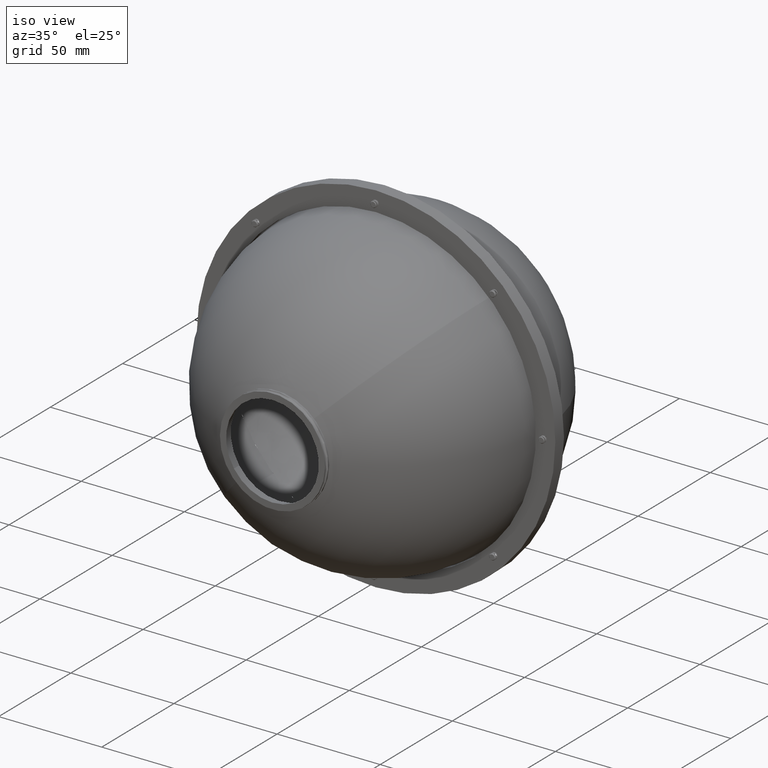
[diagram: clean part render]
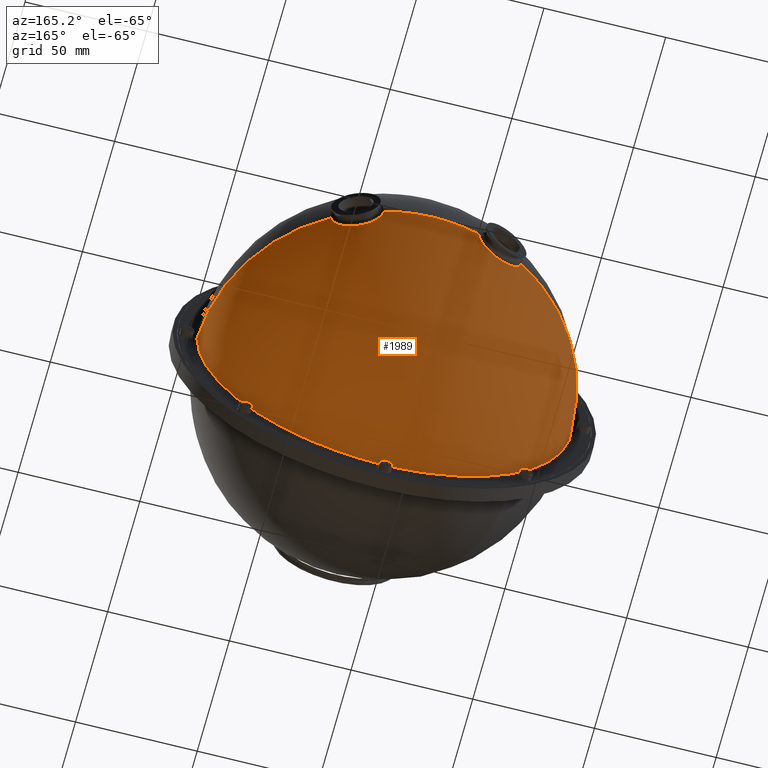
[diagram: tour spotlight — one face highlighted and labeled with its STEP entity id]
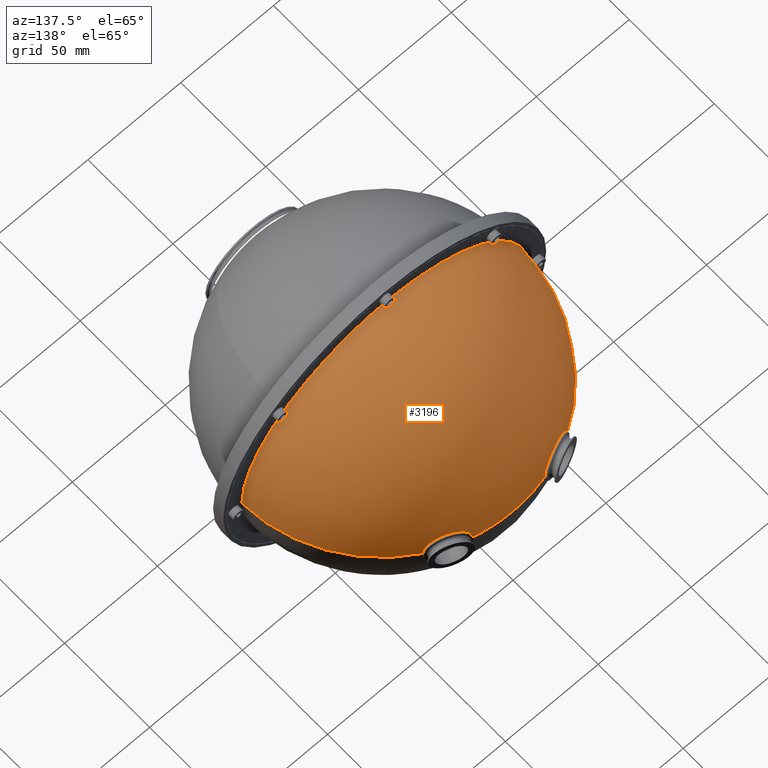
[diagram: tour spotlight — one face highlighted and labeled with its STEP entity id]
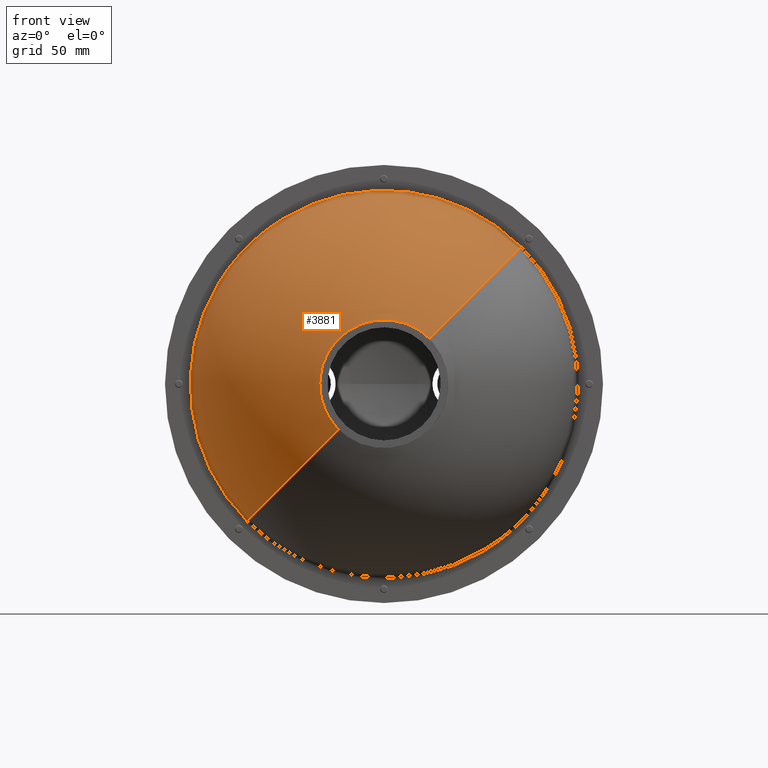
[diagram: tour spotlight — one face highlighted and labeled with its STEP entity id]
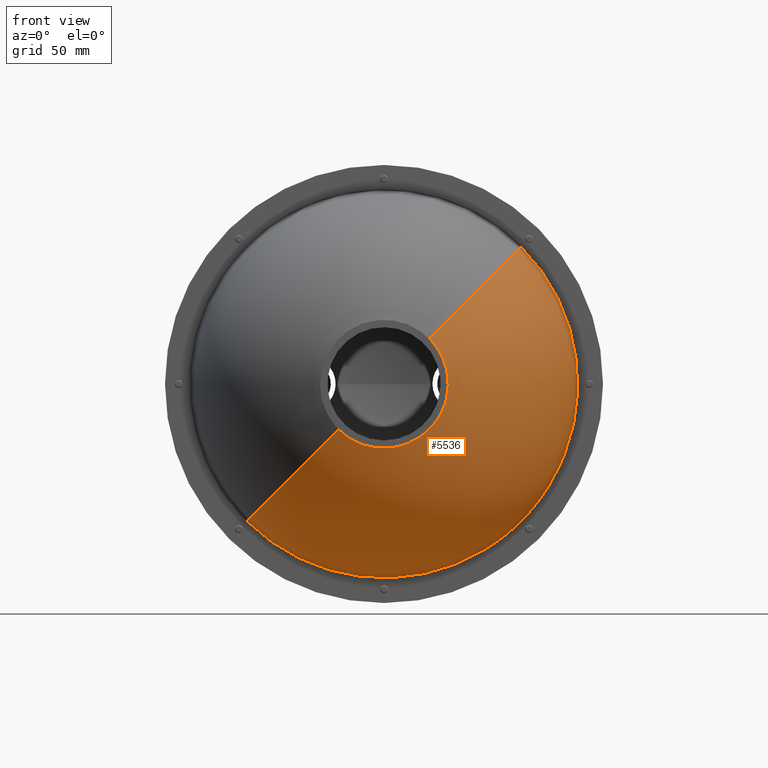
[diagram: tour spotlight — one face highlighted and labeled with its STEP entity id]
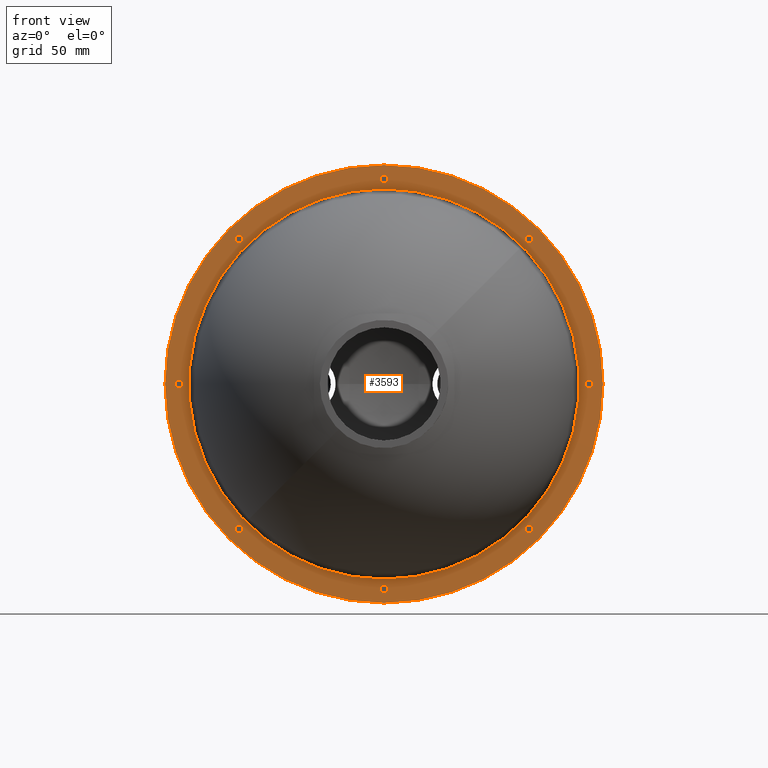
[diagram: tour spotlight — one face highlighted and labeled with its STEP entity id]
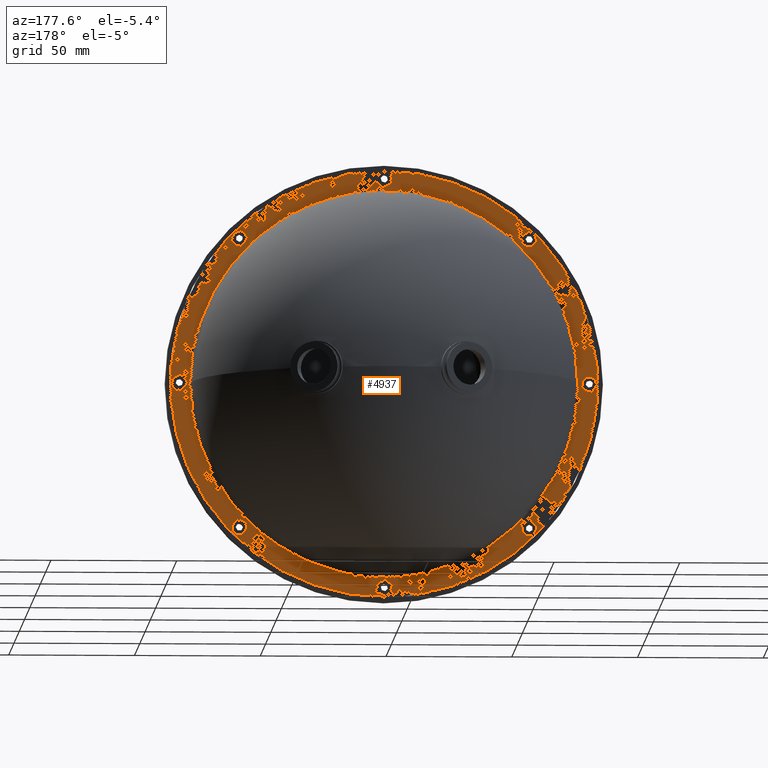
[diagram: tour spotlight — one face highlighted and labeled with its STEP entity id]
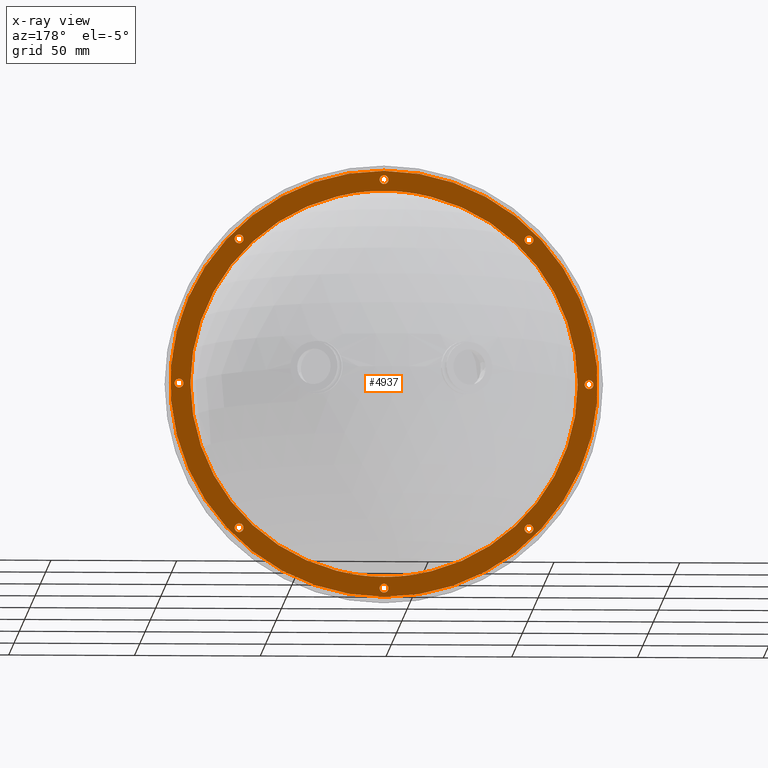
[diagram: x-ray of the same camera — body ghosted, this tour face saturated]
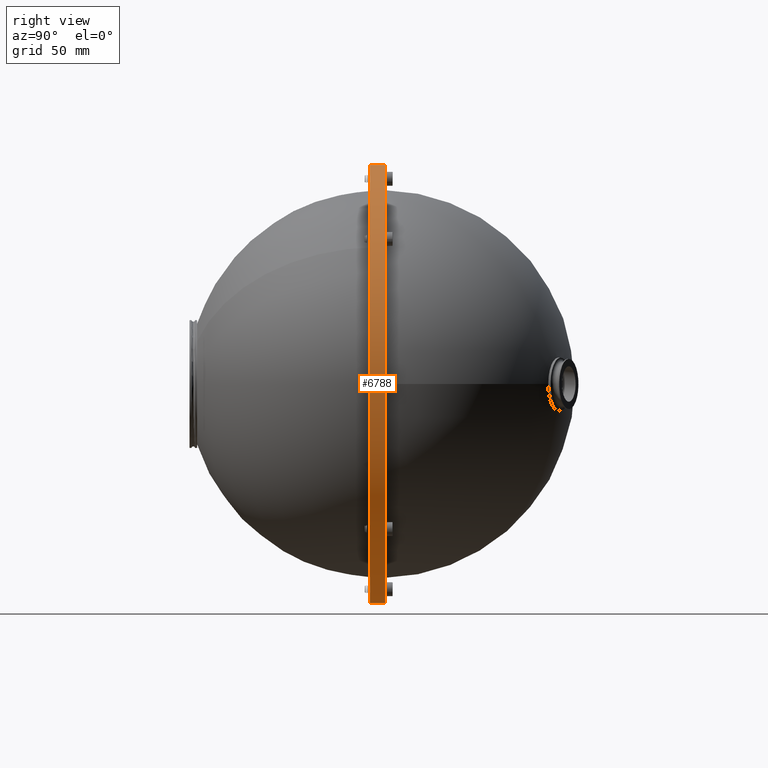
[diagram: tour spotlight — one face highlighted and labeled with its STEP entity id]
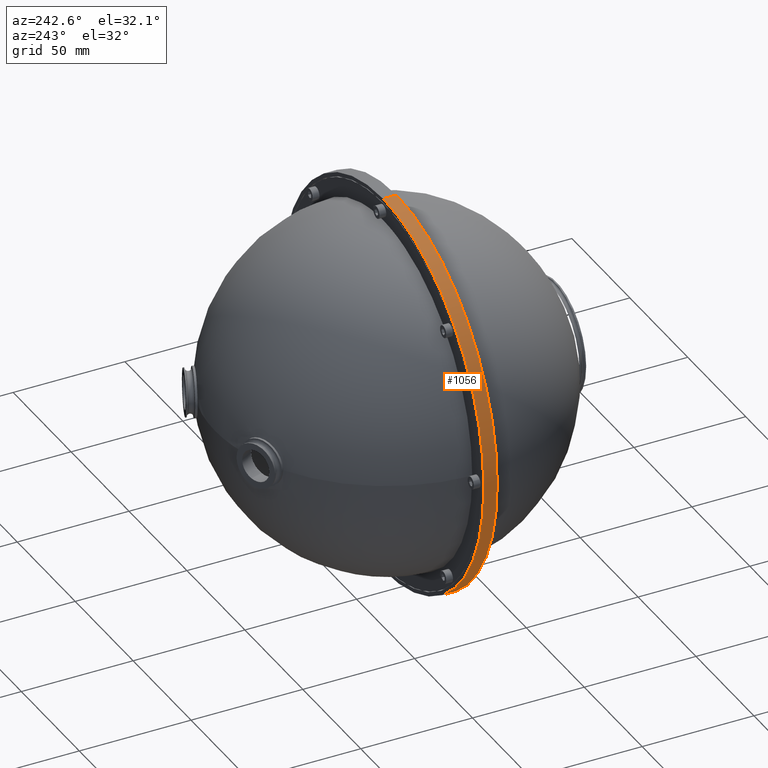
[diagram: tour spotlight — one face highlighted and labeled with its STEP entity id]
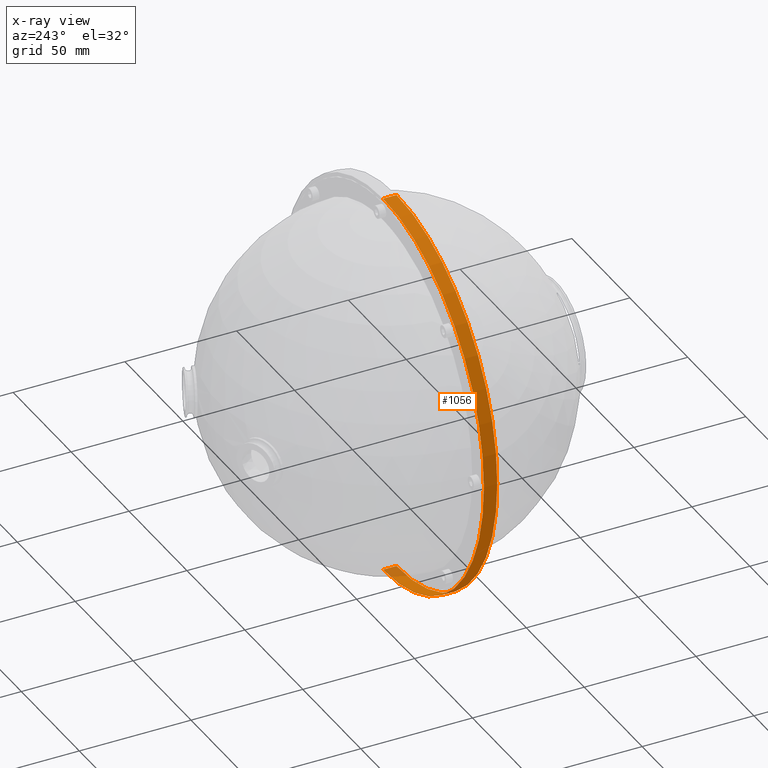
[diagram: x-ray of the same camera — body ghosted, this tour face saturated]
A machine part: a face-by-face anatomy tour. The part has 223 B-rep faces; the first image is the clean iso view, then the 8 largest visible faces are spotlighted one at a time (largest first), each with its STEP entity span.

Face 1 — auxiliary view, entity #1989. In plain terms, the highlighted spherical surface has radius 77 mm.
Definition (entity closure, byte-faithful):
#381 = CARTESIAN_POINT ( 'NONE',  ( 85.46525042845644293, -16.21086588718419819, 0.000000000000000000 ) ) ;
#571 = EDGE_CURVE ( 'NONE', #6579, #4564, #3732, .T. ) ;
#621 = DIRECTION ( 'NONE',  ( 0.9238795325112891810, 0.3826834323650841196, 0.000000000000000000 ) ) ;
#634 = EDGE_LOOP ( 'NONE', ( #4439, #2754, #6714, #4764, #6302, #3279, #6836 ) ) ;
#771 = DIRECTION ( 'NONE',  ( 1.000000000000000000, 0.000000000000000000, -1.224646799147353207E-16 ) ) ;
#792 = VERTEX_POINT ( 'NONE', #381 ) ;
#931 = AXIS2_PLACEMENT_3D ( 'NONE', #7152, #2297, #1114 ) ;
#937 = AXIS2_PLACEMENT_3D ( 'NONE', #6426, #948, #4497 ) ;
#948 = DIRECTION ( 'NONE',  ( 0.000000000000000000, 0.000000000000000000, -1.000000000000000000 ) ) ;
#1037 = EDGE_CURVE ( 'NONE', #792, #4564, #6500, .T. ) ;
#1096 = SPHERICAL_SURFACE ( 'NONE', #4573, 77.00000000000000000 ) ;
#1114 = DIRECTION ( 'NONE',  ( 1.000000000000000000, 0.000000000000000000, -1.224646799147353207E-16 ) ) ;
#1303 = CIRCLE ( 'NONE', #7511, 77.00000000000000000 ) ;
#1755 = DIRECTION ( 'NONE',  ( 0.000000000000000000, 0.000000000000000000, -1.000000000000000000 ) ) ;
#1989 = ADVANCED_FACE ( 'NONE', ( #7766 ), #1096, .T. ) ;
#2262 = DIRECTION ( 'NONE',  ( -1.000000000000000000, 0.000000000000000000, 0.000000000000000000 ) ) ;
#2297 = DIRECTION ( 'NONE',  ( 1.224646799147353207E-16, -0.000000000000000000, 1.000000000000000000 ) ) ;
#2753 = CARTESIAN_POINT ( 'NONE',  ( -11.49425755377976976, 56.45221949766364844, 2.446633237235498378E-15 ) ) ;
#2754 = ORIENTED_EDGE ( 'NONE', *, *, #3098, .T. ) ;
#3071 = DIRECTION ( 'NONE',  ( 0.9238795325112864054, -0.3826834323650907255, 0.000000000000000000 ) ) ;
#3098 = EDGE_CURVE ( 'NONE', #7372, #6653, #7504, .T. ) ;
#3121 = DIRECTION ( 'NONE',  ( 0.3826834323650906700, 0.9238795325112866275, 0.000000000000000000 ) ) ;
#3279 = ORIENTED_EDGE ( 'NONE', *, *, #571, .F. ) ;
#3626 = DIRECTION ( 'NONE',  ( 0.000000000000000000, 0.000000000000000000, -1.000000000000000000 ) ) ;
#3637 = EDGE_CURVE ( 'NONE', #6579, #6584, #5254, .T. ) ;
#3732 = CIRCLE ( 'NONE', #931, 77.00000000000000000 ) ;
#3767 = DIRECTION ( 'NONE',  ( 0.3826834323650840641, -0.9238795325112891810, -0.000000000000000000 ) ) ;
#3934 = CARTESIAN_POINT ( 'NONE',  ( -68.49721252923983172, -16.21086588718419819, 9.427481872499282890E-15 ) ) ;
#4083 = AXIS2_PLACEMENT_3D ( 'NONE', #5994, #1755, #2262 ) ;
#4265 = DIRECTION ( 'NONE',  ( -0.000000000000000000, 1.000000000000000000, -0.000000000000000000 ) ) ;
#4306 = CARTESIAN_POINT ( 'NONE',  ( 37.70109077810972309, 52.62538517401262084, 0.000000000000000000 ) ) ;
#4362 = CARTESIAN_POINT ( 'NONE',  ( -20.73305287889260740, 52.62538517401282689, 0.000000000000000000 ) ) ;
#4439 = ORIENTED_EDGE ( 'NONE', *, *, #7080, .F. ) ;
#4482 = AXIS2_PLACEMENT_3D ( 'NONE', #7349, #4265, #3626 ) ;
#4497 = DIRECTION ( 'NONE',  ( -1.000000000000000000, 0.000000000000000000, 0.000000000000000000 ) ) ;
#4523 = EDGE_CURVE ( 'NONE', #6513, #792, #7036, .T. ) ;
#4564 = VERTEX_POINT ( 'NONE', #3934 ) ;
#4573 = AXIS2_PLACEMENT_3D ( 'NONE', #6491, #6416, #5857 ) ;
#4764 = ORIENTED_EDGE ( 'NONE', *, *, #4523, .T. ) ;
#4862 = AXIS2_PLACEMENT_3D ( 'NONE', #4306, #3121, #3071 ) ;
#5254 = CIRCLE ( 'NONE', #7040, 10.00000000000000533 ) ;
#5256 = CARTESIAN_POINT ( 'NONE',  ( -29.97184820400544680, 48.79855085036201245, 4.709485461810891701E-15 ) ) ;
#5857 = DIRECTION ( 'NONE',  ( 1.000000000000000000, 0.000000000000000000, 0.000000000000000000 ) ) ;
#5970 = CARTESIAN_POINT ( 'NONE',  ( 28.46229545299685171, 56.45221949766352054, 0.000000000000000000 ) ) ;
#5994 = CARTESIAN_POINT ( 'NONE',  ( 8.484018949608307381, -17.91086588718419748, 0.000000000000000000 ) ) ;
#6302 = ORIENTED_EDGE ( 'NONE', *, *, #1037, .T. ) ;
#6326 = CARTESIAN_POINT ( 'NONE',  ( 46.93988610322259092, 48.79855085036170692, 0.000000000000000000 ) ) ;
#6416 = DIRECTION ( 'NONE',  ( 0.000000000000000000, 0.000000000000000000, 1.000000000000000000 ) ) ;
#6426 = CARTESIAN_POINT ( 'NONE',  ( 8.484018949608307381, -17.91086588718419748, 0.000000000000000000 ) ) ;
#6491 = CARTESIAN_POINT ( 'NONE',  ( 8.484018949608307381, -17.91086588718419748, 0.000000000000000000 ) ) ;
#6500 = CIRCLE ( 'NONE', #4482, 76.98123147884814443 ) ;
#6513 = VERTEX_POINT ( 'NONE', #6326 ) ;
#6579 = VERTEX_POINT ( 'NONE', #5256 ) ;
#6584 = VERTEX_POINT ( 'NONE', #2753 ) ;
#6653 = VERTEX_POINT ( 'NONE', #5970 ) ;
#6678 = CARTESIAN_POINT ( 'NONE',  ( 8.484018949608312710, 59.08913411281579897, 0.000000000000000000 ) ) ;
#6714 = ORIENTED_EDGE ( 'NONE', *, *, #6814, .F. ) ;
#6814 = EDGE_CURVE ( 'NONE', #6513, #6653, #7287, .T. ) ;
#6836 = ORIENTED_EDGE ( 'NONE', *, *, #3637, .T. ) ;
#6846 = CARTESIAN_POINT ( 'NONE',  ( 8.484018949608307381, -17.91086588718419748, 0.000000000000000000 ) ) ;
#7036 = CIRCLE ( 'NONE', #937, 77.00000000000000000 ) ;
#7040 = AXIS2_PLACEMENT_3D ( 'NONE', #4362, #3767, #621 ) ;
#7080 = EDGE_CURVE ( 'NONE', #7372, #6584, #1303, .T. ) ;
#7152 = CARTESIAN_POINT ( 'NONE',  ( 8.484018949608307381, -17.91086588718419748, 0.000000000000000000 ) ) ;
#7287 = CIRCLE ( 'NONE', #4862, 9.999999999999996447 ) ;
#7292 = DIRECTION ( 'NONE',  ( 1.224646799147353207E-16, -0.000000000000000000, 1.000000000000000000 ) ) ;
#7349 = CARTESIAN_POINT ( 'NONE',  ( 8.484018949608307381, -16.21086588718419819, 0.000000000000000000 ) ) ;
#7372 = VERTEX_POINT ( 'NONE', #6678 ) ;
#7504 = CIRCLE ( 'NONE', #4083, 77.00000000000000000 ) ;
#7511 = AXIS2_PLACEMENT_3D ( 'NONE', #6846, #7292, #771 ) ;
#7766 = FACE_OUTER_BOUND ( 'NONE', #634, .T. ) ;

Face 2 — auxiliary view, entity #3196. In plain terms, the highlighted spherical surface has radius 77 mm.
Definition (entity closure, byte-faithful):
#83 = FACE_OUTER_BOUND ( 'NONE', #1662, .T. ) ;
#170 = DIRECTION ( 'NONE',  ( 0.000000000000000000, 0.000000000000000000, -1.000000000000000000 ) ) ;
#381 = CARTESIAN_POINT ( 'NONE',  ( 85.46525042845644293, -16.21086588718419819, 0.000000000000000000 ) ) ;
#571 = EDGE_CURVE ( 'NONE', #6579, #4564, #3732, .T. ) ;
#750 = CARTESIAN_POINT ( 'NONE',  ( 8.484018949608307381, -17.91086588718419748, 0.000000000000000000 ) ) ;
#771 = DIRECTION ( 'NONE',  ( 1.000000000000000000, 0.000000000000000000, -1.224646799147353207E-16 ) ) ;
#792 = VERTEX_POINT ( 'NONE', #381 ) ;
#931 = AXIS2_PLACEMENT_3D ( 'NONE', #7152, #2297, #1114 ) ;
#937 = AXIS2_PLACEMENT_3D ( 'NONE', #6426, #948, #4497 ) ;
#948 = DIRECTION ( 'NONE',  ( 0.000000000000000000, 0.000000000000000000, -1.000000000000000000 ) ) ;
#956 = CIRCLE ( 'NONE', #4267, 76.98123147884814443 ) ;
#1114 = DIRECTION ( 'NONE',  ( 1.000000000000000000, 0.000000000000000000, -1.224646799147353207E-16 ) ) ;
#1303 = CIRCLE ( 'NONE', #7511, 77.00000000000000000 ) ;
#1518 = CARTESIAN_POINT ( 'NONE',  ( -20.73305287889260740, 52.62538517401282689, 0.000000000000000000 ) ) ;
#1662 = EDGE_LOOP ( 'NONE', ( #4549, #1668, #3517, #2343, #4936, #2645, #7858 ) ) ;
#1668 = ORIENTED_EDGE ( 'NONE', *, *, #7080, .T. ) ;
#1755 = DIRECTION ( 'NONE',  ( 0.000000000000000000, 0.000000000000000000, -1.000000000000000000 ) ) ;
#2258 = CIRCLE ( 'NONE', #2520, 9.999999999999996447 ) ;
#2262 = DIRECTION ( 'NONE',  ( -1.000000000000000000, 0.000000000000000000, 0.000000000000000000 ) ) ;
#2297 = DIRECTION ( 'NONE',  ( 1.224646799147353207E-16, -0.000000000000000000, 1.000000000000000000 ) ) ;
#2343 = ORIENTED_EDGE ( 'NONE', *, *, #571, .T. ) ;
#2363 = CARTESIAN_POINT ( 'NONE',  ( 8.484018949608307381, -16.21086588718419819, 0.000000000000000000 ) ) ;
#2520 = AXIS2_PLACEMENT_3D ( 'NONE', #5679, #4530, #3259 ) ;
#2645 = ORIENTED_EDGE ( 'NONE', *, *, #4523, .F. ) ;
#2753 = CARTESIAN_POINT ( 'NONE',  ( -11.49425755377976976, 56.45221949766364844, 2.446633237235498378E-15 ) ) ;
#3098 = EDGE_CURVE ( 'NONE', #7372, #6653, #7504, .T. ) ;
#3196 = ADVANCED_FACE ( 'NONE', ( #83 ), #4920, .T. ) ;
#3259 = DIRECTION ( 'NONE',  ( 0.9238795325112864054, -0.3826834323650907255, 0.000000000000000000 ) ) ;
#3335 = DIRECTION ( 'NONE',  ( 0.9238795325112891810, 0.3826834323650841196, 0.000000000000000000 ) ) ;
#3517 = ORIENTED_EDGE ( 'NONE', *, *, #4792, .T. ) ;
#3655 = DIRECTION ( 'NONE',  ( 0.000000000000000000, 0.000000000000000000, 1.000000000000000000 ) ) ;
#3732 = CIRCLE ( 'NONE', #931, 77.00000000000000000 ) ;
#3934 = CARTESIAN_POINT ( 'NONE',  ( -68.49721252923983172, -16.21086588718419819, 9.427481872499282890E-15 ) ) ;
#4068 = EDGE_CURVE ( 'NONE', #4564, #792, #956, .T. ) ;
#4083 = AXIS2_PLACEMENT_3D ( 'NONE', #5994, #1755, #2262 ) ;
#4231 = DIRECTION ( 'NONE',  ( -0.000000000000000000, 1.000000000000000000, -0.000000000000000000 ) ) ;
#4256 = CIRCLE ( 'NONE', #5520, 10.00000000000000533 ) ;
#4267 = AXIS2_PLACEMENT_3D ( 'NONE', #2363, #4231, #170 ) ;
#4497 = DIRECTION ( 'NONE',  ( -1.000000000000000000, 0.000000000000000000, 0.000000000000000000 ) ) ;
#4523 = EDGE_CURVE ( 'NONE', #6513, #792, #7036, .T. ) ;
#4530 = DIRECTION ( 'NONE',  ( 0.3826834323650906700, 0.9238795325112866275, 0.000000000000000000 ) ) ;
#4549 = ORIENTED_EDGE ( 'NONE', *, *, #3098, .F. ) ;
#4564 = VERTEX_POINT ( 'NONE', #3934 ) ;
#4792 = EDGE_CURVE ( 'NONE', #6584, #6579, #4256, .T. ) ;
#4845 = DIRECTION ( 'NONE',  ( 1.000000000000000000, 0.000000000000000000, 0.000000000000000000 ) ) ;
#4920 = SPHERICAL_SURFACE ( 'NONE', #7128, 77.00000000000000000 ) ;
#4936 = ORIENTED_EDGE ( 'NONE', *, *, #4068, .T. ) ;
#5256 = CARTESIAN_POINT ( 'NONE',  ( -29.97184820400544680, 48.79855085036201245, 4.709485461810891701E-15 ) ) ;
#5481 = EDGE_CURVE ( 'NONE', #6653, #6513, #2258, .T. ) ;
#5520 = AXIS2_PLACEMENT_3D ( 'NONE', #1518, #5720, #3335 ) ;
#5679 = CARTESIAN_POINT ( 'NONE',  ( 37.70109077810972309, 52.62538517401262084, 0.000000000000000000 ) ) ;
#5720 = DIRECTION ( 'NONE',  ( 0.3826834323650840641, -0.9238795325112891810, -0.000000000000000000 ) ) ;
#5970 = CARTESIAN_POINT ( 'NONE',  ( 28.46229545299685171, 56.45221949766352054, 0.000000000000000000 ) ) ;
#5994 = CARTESIAN_POINT ( 'NONE',  ( 8.484018949608307381, -17.91086588718419748, 0.000000000000000000 ) ) ;
#6326 = CARTESIAN_POINT ( 'NONE',  ( 46.93988610322259092, 48.79855085036170692, 0.000000000000000000 ) ) ;
#6426 = CARTESIAN_POINT ( 'NONE',  ( 8.484018949608307381, -17.91086588718419748, 0.000000000000000000 ) ) ;
#6513 = VERTEX_POINT ( 'NONE', #6326 ) ;
#6579 = VERTEX_POINT ( 'NONE', #5256 ) ;
#6584 = VERTEX_POINT ( 'NONE', #2753 ) ;
#6653 = VERTEX_POINT ( 'NONE', #5970 ) ;
#6678 = CARTESIAN_POINT ( 'NONE',  ( 8.484018949608312710, 59.08913411281579897, 0.000000000000000000 ) ) ;
#6846 = CARTESIAN_POINT ( 'NONE',  ( 8.484018949608307381, -17.91086588718419748, 0.000000000000000000 ) ) ;
#7036 = CIRCLE ( 'NONE', #937, 77.00000000000000000 ) ;
#7080 = EDGE_CURVE ( 'NONE', #7372, #6584, #1303, .T. ) ;
#7128 = AXIS2_PLACEMENT_3D ( 'NONE', #750, #3655, #4845 ) ;
#7152 = CARTESIAN_POINT ( 'NONE',  ( 8.484018949608307381, -17.91086588718419748, 0.000000000000000000 ) ) ;
#7292 = DIRECTION ( 'NONE',  ( 1.224646799147353207E-16, -0.000000000000000000, 1.000000000000000000 ) ) ;
#7372 = VERTEX_POINT ( 'NONE', #6678 ) ;
#7504 = CIRCLE ( 'NONE', #4083, 77.00000000000000000 ) ;
#7511 = AXIS2_PLACEMENT_3D ( 'NONE', #6846, #7292, #771 ) ;
#7858 = ORIENTED_EDGE ( 'NONE', *, *, #5481, .F. ) ;

Face 3 — front view, entity #3881. In plain terms, the highlighted spherical surface has radius 77 mm.
Definition (entity closure, byte-faithful):
#91 = EDGE_CURVE ( 'NONE', #4243, #1600, #2977, .T. ) ;
#397 = CARTESIAN_POINT ( 'NONE',  ( 62.91287159230063253, -19.71086588718419463, 54.42885264269426671 ) ) ;
#576 = DIRECTION ( 'NONE',  ( 0.7071067811865587860, 0.000000000000000000, -0.7071067811865364705 ) ) ;
#709 = CARTESIAN_POINT ( 'NONE',  ( -45.94483369308390053, -19.71086588718419463, -54.42885264269369117 ) ) ;
#766 = DIRECTION ( 'NONE',  ( -0.7071067811865585639, 0.000000000000000000, 0.7071067811865365815 ) ) ;
#1009 = DIRECTION ( 'NONE',  ( 0.7071067811865365815, 0.000000000000000000, 0.7071067811865585639 ) ) ;
#1095 = SPHERICAL_SURFACE ( 'NONE', #7296, 77.00000000000000000 ) ;
#1600 = VERTEX_POINT ( 'NONE', #709 ) ;
#2041 = DIRECTION ( 'NONE',  ( -0.000000000000000000, -1.000000000000000000, -0.000000000000000000 ) ) ;
#2383 = ORIENTED_EDGE ( 'NONE', *, *, #91, .F. ) ;
#2423 = CIRCLE ( 'NONE', #6738, 24.00000000000002487 ) ;
#2660 = EDGE_CURVE ( 'NONE', #4243, #5325, #2423, .T. ) ;
#2977 = CIRCLE ( 'NONE', #5260, 77.00000000000000000 ) ;
#3881 = ADVANCED_FACE ( 'NONE', ( #7724 ), #1095, .T. ) ;
#4060 = EDGE_CURVE ( 'NONE', #7196, #1600, #4397, .T. ) ;
#4155 = CARTESIAN_POINT ( 'NONE',  ( 8.484018949608364224, -17.71086588718419819, 2.914335439641035919E-13 ) ) ;
#4243 = VERTEX_POINT ( 'NONE', #7158 ) ;
#4397 = CIRCLE ( 'NONE', #5142, 76.97402159170331970 ) ;
#4510 = DIRECTION ( 'NONE',  ( 0.000000000000000000, 1.000000000000000000, 0.000000000000000000 ) ) ;
#4588 = DIRECTION ( 'NONE',  ( 0.7071067811865585639, 0.000000000000000000, -0.7071067811865365815 ) ) ;
#4664 = AXIS2_PLACEMENT_3D ( 'NONE', #6613, #5348, #5910 ) ;
#5092 = EDGE_LOOP ( 'NONE', ( #2383, #6878, #6483, #7440 ) ) ;
#5142 = AXIS2_PLACEMENT_3D ( 'NONE', #6802, #2041, #766 ) ;
#5260 = AXIS2_PLACEMENT_3D ( 'NONE', #7131, #576, #5264 ) ;
#5264 = DIRECTION ( 'NONE',  ( -0.7071067811865363595, 0.000000000000000000, -0.7071067811865587860 ) ) ;
#5325 = VERTEX_POINT ( 'NONE', #5558 ) ;
#5348 = DIRECTION ( 'NONE',  ( -0.7071067811865586750, 0.000000000000000000, 0.7071067811865365815 ) ) ;
#5558 = CARTESIAN_POINT ( 'NONE',  ( 25.45458169808532389, -90.87506478254557862, 16.97056274847778212 ) ) ;
#5910 = DIRECTION ( 'NONE',  ( 0.7071067811865365815, 0.000000000000000000, 0.7071067811865585639 ) ) ;
#6323 = CARTESIAN_POINT ( 'NONE',  ( 8.484018949608364224, -90.87506478254557862, 2.914335439641035919E-13 ) ) ;
#6374 = EDGE_CURVE ( 'NONE', #5325, #7196, #7838, .T. ) ;
#6483 = ORIENTED_EDGE ( 'NONE', *, *, #6374, .T. ) ;
#6613 = CARTESIAN_POINT ( 'NONE',  ( 8.484018949608364224, -17.71086588718419819, 2.914335439641035919E-13 ) ) ;
#6738 = AXIS2_PLACEMENT_3D ( 'NONE', #6323, #4510, #6804 ) ;
#6802 = CARTESIAN_POINT ( 'NONE',  ( 8.484018949608364224, -19.71086588718419463, 2.914335439641035919E-13 ) ) ;
#6804 = DIRECTION ( 'NONE',  ( -0.7071067811865584529, 0.000000000000000000, 0.7071067811865364705 ) ) ;
#6878 = ORIENTED_EDGE ( 'NONE', *, *, #2660, .T. ) ;
#7131 = CARTESIAN_POINT ( 'NONE',  ( 8.484018949608364224, -17.71086588718419819, 2.914335439641035919E-13 ) ) ;
#7158 = CARTESIAN_POINT ( 'NONE',  ( -8.486543798868593669, -90.87506478254557862, -16.97056274847720303 ) ) ;
#7196 = VERTEX_POINT ( 'NONE', #397 ) ;
#7296 = AXIS2_PLACEMENT_3D ( 'NONE', #4155, #4588, #1009 ) ;
#7440 = ORIENTED_EDGE ( 'NONE', *, *, #4060, .T. ) ;
#7724 = FACE_OUTER_BOUND ( 'NONE', #5092, .T. ) ;
#7838 = CIRCLE ( 'NONE', #4664, 77.00000000000000000 ) ;

Face 4 — front view, entity #5536. In plain terms, the highlighted spherical surface has radius 77 mm.
Definition (entity closure, byte-faithful):
#91 = EDGE_CURVE ( 'NONE', #4243, #1600, #2977, .T. ) ;
#107 = AXIS2_PLACEMENT_3D ( 'NONE', #6419, #1583, #3895 ) ;
#397 = CARTESIAN_POINT ( 'NONE',  ( 62.91287159230063253, -19.71086588718419463, 54.42885264269426671 ) ) ;
#556 = ORIENTED_EDGE ( 'NONE', *, *, #6374, .F. ) ;
#576 = DIRECTION ( 'NONE',  ( 0.7071067811865587860, 0.000000000000000000, -0.7071067811865364705 ) ) ;
#709 = CARTESIAN_POINT ( 'NONE',  ( -45.94483369308390053, -19.71086588718419463, -54.42885264269369117 ) ) ;
#1583 = DIRECTION ( 'NONE',  ( 0.7071067811865585639, 0.000000000000000000, -0.7071067811865365815 ) ) ;
#1600 = VERTEX_POINT ( 'NONE', #709 ) ;
#1960 = AXIS2_PLACEMENT_3D ( 'NONE', #5010, #3900, #4961 ) ;
#2189 = AXIS2_PLACEMENT_3D ( 'NONE', #3837, #4277, #4939 ) ;
#2357 = EDGE_LOOP ( 'NONE', ( #3567, #5196, #4610, #556 ) ) ;
#2977 = CIRCLE ( 'NONE', #5260, 77.00000000000000000 ) ;
#3567 = ORIENTED_EDGE ( 'NONE', *, *, #7017, .T. ) ;
#3603 = CIRCLE ( 'NONE', #1960, 76.97402159170331970 ) ;
#3837 = CARTESIAN_POINT ( 'NONE',  ( 8.484018949608364224, -90.87506478254557862, 2.914335439641035919E-13 ) ) ;
#3895 = DIRECTION ( 'NONE',  ( 0.7071067811865365815, 0.000000000000000000, 0.7071067811865585639 ) ) ;
#3900 = DIRECTION ( 'NONE',  ( -0.000000000000000000, -1.000000000000000000, -0.000000000000000000 ) ) ;
#4243 = VERTEX_POINT ( 'NONE', #7158 ) ;
#4277 = DIRECTION ( 'NONE',  ( 0.000000000000000000, 1.000000000000000000, 0.000000000000000000 ) ) ;
#4610 = ORIENTED_EDGE ( 'NONE', *, *, #7842, .T. ) ;
#4664 = AXIS2_PLACEMENT_3D ( 'NONE', #6613, #5348, #5910 ) ;
#4939 = DIRECTION ( 'NONE',  ( -0.7071067811865584529, 0.000000000000000000, 0.7071067811865364705 ) ) ;
#4961 = DIRECTION ( 'NONE',  ( -0.7071067811865585639, 0.000000000000000000, 0.7071067811865365815 ) ) ;
#5010 = CARTESIAN_POINT ( 'NONE',  ( 8.484018949608364224, -19.71086588718419463, 2.914335439641035919E-13 ) ) ;
#5196 = ORIENTED_EDGE ( 'NONE', *, *, #91, .T. ) ;
#5260 = AXIS2_PLACEMENT_3D ( 'NONE', #7131, #576, #5264 ) ;
#5264 = DIRECTION ( 'NONE',  ( -0.7071067811865363595, 0.000000000000000000, -0.7071067811865587860 ) ) ;
#5325 = VERTEX_POINT ( 'NONE', #5558 ) ;
#5348 = DIRECTION ( 'NONE',  ( -0.7071067811865586750, 0.000000000000000000, 0.7071067811865365815 ) ) ;
#5536 = ADVANCED_FACE ( 'NONE', ( #6900 ), #6941, .T. ) ;
#5558 = CARTESIAN_POINT ( 'NONE',  ( 25.45458169808532389, -90.87506478254557862, 16.97056274847778212 ) ) ;
#5624 = CIRCLE ( 'NONE', #2189, 24.00000000000002487 ) ;
#5910 = DIRECTION ( 'NONE',  ( 0.7071067811865365815, 0.000000000000000000, 0.7071067811865585639 ) ) ;
#6374 = EDGE_CURVE ( 'NONE', #5325, #7196, #7838, .T. ) ;
#6419 = CARTESIAN_POINT ( 'NONE',  ( 8.484018949608364224, -17.71086588718419819, 2.914335439641035919E-13 ) ) ;
#6613 = CARTESIAN_POINT ( 'NONE',  ( 8.484018949608364224, -17.71086588718419819, 2.914335439641035919E-13 ) ) ;
#6900 = FACE_OUTER_BOUND ( 'NONE', #2357, .T. ) ;
#6941 = SPHERICAL_SURFACE ( 'NONE', #107, 77.00000000000000000 ) ;
#7017 = EDGE_CURVE ( 'NONE', #5325, #4243, #5624, .T. ) ;
#7131 = CARTESIAN_POINT ( 'NONE',  ( 8.484018949608364224, -17.71086588718419819, 2.914335439641035919E-13 ) ) ;
#7158 = CARTESIAN_POINT ( 'NONE',  ( -8.486543798868593669, -90.87506478254557862, -16.97056274847720303 ) ) ;
#7196 = VERTEX_POINT ( 'NONE', #397 ) ;
#7838 = CIRCLE ( 'NONE', #4664, 77.00000000000000000 ) ;
#7842 = EDGE_CURVE ( 'NONE', #1600, #7196, #3603, .T. ) ;

Face 5 — front view, entity #3593. In plain terms, the highlighted planar face has unit normal (0, 1, 0).
Definition (entity closure, byte-faithful):
#9 = ORIENTED_EDGE ( 'NONE', *, *, #7265, .T. ) ;
#16 = CIRCLE ( 'NONE', #2050, 1.250000000000001110 ) ;
#29 = VERTEX_POINT ( 'NONE', #1576 ) ;
#63 = CARTESIAN_POINT ( 'NONE',  ( 89.98401894960836955, -22.21086588718419819, 2.914335439641035919E-13 ) ) ;
#80 = EDGE_CURVE ( 'NONE', #4718, #595, #6019, .T. ) ;
#108 = FACE_BOUND ( 'NONE', #3474, .T. ) ;
#111 = CARTESIAN_POINT ( 'NONE',  ( 89.98401894960836955, -22.21086588718419819, -1.249999999999709566 ) ) ;
#163 = DIRECTION ( 'NONE',  ( 0.000000000000000000, 1.000000000000000000, 0.000000000000000000 ) ) ;
#183 = DIRECTION ( 'NONE',  ( 0.000000000000000000, 1.000000000000000000, 0.000000000000000000 ) ) ;
#242 = EDGE_CURVE ( 'NONE', #7268, #1511, #2729, .T. ) ;
#360 = CARTESIAN_POINT ( 'NONE',  ( -49.14518371709555566, -22.21086588718419819, 57.62920266670361258 ) ) ;
#393 = DIRECTION ( 'NONE',  ( 0.000000000000000000, 1.000000000000000000, 0.000000000000000000 ) ) ;
#395 = CARTESIAN_POINT ( 'NONE',  ( 8.484018949608078231, -22.21086588718419819, 81.50000000000029843 ) ) ;
#406 = DIRECTION ( 'NONE',  ( 0.000000000000000000, 0.000000000000000000, 1.000000000000000000 ) ) ;
#428 = VERTEX_POINT ( 'NONE', #7621 ) ;
#437 = AXIS2_PLACEMENT_3D ( 'NONE', #63, #6688, #6051 ) ;
#565 = DIRECTION ( 'NONE',  ( 0.000000000000000000, 0.000000000000000000, 1.000000000000000000 ) ) ;
#595 = VERTEX_POINT ( 'NONE', #7426 ) ;
#623 = VERTEX_POINT ( 'NONE', #1994 ) ;
#656 = FACE_BOUND ( 'NONE', #1485, .T. ) ;
#716 = EDGE_LOOP ( 'NONE', ( #1486, #6519 ) ) ;
#733 = CIRCLE ( 'NONE', #2778, 87.00000000000000000 ) ;
#743 = DIRECTION ( 'NONE',  ( 0.000000000000000000, 0.000000000000000000, 1.000000000000000000 ) ) ;
#755 = ORIENTED_EDGE ( 'NONE', *, *, #4314, .T. ) ;
#821 = EDGE_CURVE ( 'NONE', #3457, #2005, #7157, .T. ) ;
#837 = VERTEX_POINT ( 'NONE', #1019 ) ;
#845 = DIRECTION ( 'NONE',  ( 0.000000000000000000, 0.000000000000000000, 1.000000000000000000 ) ) ;
#850 = DIRECTION ( 'NONE',  ( 0.000000000000000000, 0.000000000000000000, 1.000000000000000000 ) ) ;
#866 = DIRECTION ( 'NONE',  ( 0.000000000000000000, 1.000000000000000000, 0.000000000000000000 ) ) ;
#886 = DIRECTION ( 'NONE',  ( 0.000000000000000000, 0.000000000000000000, 1.000000000000000000 ) ) ;
#887 = CIRCLE ( 'NONE', #5332, 77.50000000000000000 ) ;
#940 = EDGE_CURVE ( 'NONE', #5884, #623, #3218, .T. ) ;
#992 = AXIS2_PLACEMENT_3D ( 'NONE', #5305, #4706, #3444 ) ;
#1019 = CARTESIAN_POINT ( 'NONE',  ( 66.11322161631269978, -22.21086588718419819, -58.87920266670263914 ) ) ;
#1046 = EDGE_CURVE ( 'NONE', #7591, #428, #6121, .T. ) ;
#1109 = CARTESIAN_POINT ( 'NONE',  ( 89.98401894960836955, -22.21086588718419819, 2.914335439641035919E-13 ) ) ;
#1129 = DIRECTION ( 'NONE',  ( 0.000000000000000000, 0.000000000000000000, 1.000000000000000000 ) ) ;
#1152 = AXIS2_PLACEMENT_3D ( 'NONE', #6889, #3917, #7562 ) ;
#1176 = EDGE_LOOP ( 'NONE', ( #1444, #2615 ) ) ;
#1227 = DIRECTION ( 'NONE',  ( 0.000000000000000000, -0.000000000000000000, 1.000000000000000000 ) ) ;
#1263 = DIRECTION ( 'NONE',  ( 0.000000000000000000, 1.000000000000000000, 0.000000000000000000 ) ) ;
#1267 = CIRCLE ( 'NONE', #7599, 1.250000000000001110 ) ;
#1307 = AXIS2_PLACEMENT_3D ( 'NONE', #6676, #3699, #3066 ) ;
#1312 = VERTEX_POINT ( 'NONE', #4647 ) ;
#1444 = ORIENTED_EDGE ( 'NONE', *, *, #80, .F. ) ;
#1453 = EDGE_CURVE ( 'NONE', #1511, #7268, #1267, .T. ) ;
#1485 = EDGE_LOOP ( 'NONE', ( #2632, #6726 ) ) ;
#1486 = ORIENTED_EDGE ( 'NONE', *, *, #4122, .T. ) ;
#1511 = VERTEX_POINT ( 'NONE', #111 ) ;
#1536 = CIRCLE ( 'NONE', #7744, 1.250000000000001110 ) ;
#1576 = CARTESIAN_POINT ( 'NONE',  ( 8.484018949609216875, -22.21086588718419819, -80.24999999999971578 ) ) ;
#1796 = CIRCLE ( 'NONE', #6225, 1.250000000000001110 ) ;
#1804 = EDGE_CURVE ( 'NONE', #5139, #6206, #887, .T. ) ;
#1818 = AXIS2_PLACEMENT_3D ( 'NONE', #5168, #6407, #850 ) ;
#1864 = CARTESIAN_POINT ( 'NONE',  ( 8.484018949608364224, -22.21086588718419819, 2.914335439641035919E-13 ) ) ;
#1865 = CARTESIAN_POINT ( 'NONE',  ( -49.14518371709475275, -22.21086588718419819, -57.62920266670383285 ) ) ;
#1899 = FACE_BOUND ( 'NONE', #716, .T. ) ;
#1916 = DIRECTION ( 'NONE',  ( 0.000000000000000000, 1.000000000000000000, 0.000000000000000000 ) ) ;
#1938 = FACE_BOUND ( 'NONE', #3340, .T. ) ;
#1971 = AXIS2_PLACEMENT_3D ( 'NONE', #2837, #6536, #406 ) ;
#1994 = CARTESIAN_POINT ( 'NONE',  ( 8.484018949608078231, -22.21086588718419819, 80.25000000000029843 ) ) ;
#2005 = VERTEX_POINT ( 'NONE', #6540 ) ;
#2050 = AXIS2_PLACEMENT_3D ( 'NONE', #1865, #1263, #743 ) ;
#2195 = ORIENTED_EDGE ( 'NONE', *, *, #7183, .T. ) ;
#2204 = EDGE_CURVE ( 'NONE', #1312, #29, #1536, .T. ) ;
#2264 = DIRECTION ( 'NONE',  ( 0.000000000000000000, 0.000000000000000000, 1.000000000000000000 ) ) ;
#2308 = EDGE_CURVE ( 'NONE', #4823, #7348, #7484, .T. ) ;
#2360 = EDGE_CURVE ( 'NONE', #623, #5884, #1796, .T. ) ;
#2365 = EDGE_CURVE ( 'NONE', #837, #4633, #7248, .T. ) ;
#2507 = DIRECTION ( 'NONE',  ( 0.000000000000000000, 0.000000000000000000, 1.000000000000000000 ) ) ;
#2580 = CIRCLE ( 'NONE', #4098, 1.250000000000001110 ) ;
#2614 = CIRCLE ( 'NONE', #3628, 1.250000000000001110 ) ;
#2615 = ORIENTED_EDGE ( 'NONE', *, *, #6020, .F. ) ;
#2632 = ORIENTED_EDGE ( 'NONE', *, *, #5676, .T. ) ;
#2646 = CARTESIAN_POINT ( 'NONE',  ( 8.484018949609216875, -22.21086588718419819, -81.49999999999971578 ) ) ;
#2729 = CIRCLE ( 'NONE', #437, 1.250000000000001110 ) ;
#2762 = DIRECTION ( 'NONE',  ( 0.000000000000000000, 0.000000000000000000, 1.000000000000000000 ) ) ;
#2778 = AXIS2_PLACEMENT_3D ( 'NONE', #4929, #1916, #3700 ) ;
#2793 = DIRECTION ( 'NONE',  ( 0.000000000000000000, 0.000000000000000000, 1.000000000000000000 ) ) ;
#2837 = CARTESIAN_POINT ( 'NONE',  ( 8.484018949608364224, -22.21086588718419819, 2.914335439641035919E-13 ) ) ;
#2840 = AXIS2_PLACEMENT_3D ( 'NONE', #7100, #866, #4046 ) ;
#2850 = CARTESIAN_POINT ( 'NONE',  ( 8.484018949608364224, -22.21086588718419819, -77.49999999999970157 ) ) ;
#2860 = CARTESIAN_POINT ( 'NONE',  ( 66.11322161631269978, -22.21086588718419819, -56.37920266670263203 ) ) ;
#2870 = EDGE_CURVE ( 'NONE', #2005, #3457, #16, .T. ) ;
#2891 = AXIS2_PLACEMENT_3D ( 'NONE', #3405, #163, #6420 ) ;
#3053 = EDGE_LOOP ( 'NONE', ( #9, #755 ) ) ;
#3066 = DIRECTION ( 'NONE',  ( 0.000000000000000000, 0.000000000000000000, 1.000000000000000000 ) ) ;
#3068 = ORIENTED_EDGE ( 'NONE', *, *, #242, .T. ) ;
#3089 = DIRECTION ( 'NONE',  ( 0.000000000000000000, 1.000000000000000000, 0.000000000000000000 ) ) ;
#3161 = CIRCLE ( 'NONE', #992, 1.250000000000001110 ) ;
#3218 = CIRCLE ( 'NONE', #4726, 1.250000000000001110 ) ;
#3278 = CARTESIAN_POINT ( 'NONE',  ( -49.14518371709555566, -22.21086588718419819, 56.37920266670361258 ) ) ;
#3292 = ORIENTED_EDGE ( 'NONE', *, *, #2360, .T. ) ;
#3340 = EDGE_LOOP ( 'NONE', ( #6190, #5707 ) ) ;
#3371 = AXIS2_PLACEMENT_3D ( 'NONE', #6354, #393, #845 ) ;
#3405 = CARTESIAN_POINT ( 'NONE',  ( 66.11322161631188976, -22.21086588718419819, 57.62920266670402469 ) ) ;
#3444 = DIRECTION ( 'NONE',  ( 0.000000000000000000, 0.000000000000000000, 1.000000000000000000 ) ) ;
#3457 = VERTEX_POINT ( 'NONE', #5230 ) ;
#3470 = CARTESIAN_POINT ( 'NONE',  ( -73.01598105039164466, -22.21086588718419819, 1.249999999999723332 ) ) ;
#3474 = EDGE_LOOP ( 'NONE', ( #4352, #3292 ) ) ;
#3476 = DIRECTION ( 'NONE',  ( 0.000000000000000000, 1.000000000000000000, 0.000000000000000000 ) ) ;
#3557 = DIRECTION ( 'NONE',  ( 0.000000000000000000, 1.000000000000000000, 0.000000000000000000 ) ) ;
#3571 = EDGE_LOOP ( 'NONE', ( #3068, #6096 ) ) ;
#3593 = ADVANCED_FACE ( 'NONE', ( #656, #1899, #4325, #5439, #4832, #108, #1938, #5472, #4913, #6699 ), #5517, .F. ) ;
#3628 = AXIS2_PLACEMENT_3D ( 'NONE', #6474, #5450, #2264 ) ;
#3699 = DIRECTION ( 'NONE',  ( 0.000000000000000000, 1.000000000000000000, 0.000000000000000000 ) ) ;
#3700 = DIRECTION ( 'NONE',  ( 0.000000000000000000, 0.000000000000000000, 1.000000000000000000 ) ) ;
#3705 = ORIENTED_EDGE ( 'NONE', *, *, #3789, .T. ) ;
#3746 = AXIS2_PLACEMENT_3D ( 'NONE', #1864, #3089, #1227 ) ;
#3789 = EDGE_CURVE ( 'NONE', #6206, #5139, #7542, .T. ) ;
#3814 = CARTESIAN_POINT ( 'NONE',  ( -49.14518371709555566, -22.21086588718419819, 58.87920266670361258 ) ) ;
#3885 = CIRCLE ( 'NONE', #3371, 1.250000000000001110 ) ;
#3917 = DIRECTION ( 'NONE',  ( 0.000000000000000000, 1.000000000000000000, 0.000000000000000000 ) ) ;
#4030 = DIRECTION ( 'NONE',  ( 0.000000000000000000, 1.000000000000000000, 0.000000000000000000 ) ) ;
#4046 = DIRECTION ( 'NONE',  ( 0.000000000000000000, 0.000000000000000000, 1.000000000000000000 ) ) ;
#4097 = DIRECTION ( 'NONE',  ( 0.000000000000000000, 0.000000000000000000, 1.000000000000000000 ) ) ;
#4098 = AXIS2_PLACEMENT_3D ( 'NONE', #360, #4030, #565 ) ;
#4108 = CARTESIAN_POINT ( 'NONE',  ( 8.484018949608078231, -22.21086588718419819, 81.50000000000029843 ) ) ;
#4122 = EDGE_CURVE ( 'NONE', #29, #1312, #3885, .T. ) ;
#4170 = DIRECTION ( 'NONE',  ( 0.000000000000000000, 1.000000000000000000, 0.000000000000000000 ) ) ;
#4203 = CARTESIAN_POINT ( 'NONE',  ( 8.484018949608364224, -22.21086588718419819, -86.99999999999970157 ) ) ;
#4206 = DIRECTION ( 'NONE',  ( 0.000000000000000000, 0.000000000000000000, 1.000000000000000000 ) ) ;
#4314 = EDGE_CURVE ( 'NONE', #7170, #7468, #2614, .T. ) ;
#4325 = FACE_BOUND ( 'NONE', #6637, .T. ) ;
#4352 = ORIENTED_EDGE ( 'NONE', *, *, #940, .T. ) ;
#4389 = AXIS2_PLACEMENT_3D ( 'NONE', #4557, #6220, #2762 ) ;
#4426 = ORIENTED_EDGE ( 'NONE', *, *, #2308, .T. ) ;
#4557 = CARTESIAN_POINT ( 'NONE',  ( 8.484018949608364224, -22.21086588718419819, 2.914335439641035919E-13 ) ) ;
#4633 = VERTEX_POINT ( 'NONE', #2860 ) ;
#4647 = CARTESIAN_POINT ( 'NONE',  ( 8.484018949609216875, -22.21086588718419819, -82.74999999999971578 ) ) ;
#4706 = DIRECTION ( 'NONE',  ( 0.000000000000000000, 1.000000000000000000, 0.000000000000000000 ) ) ;
#4718 = VERTEX_POINT ( 'NONE', #4203 ) ;
#4726 = AXIS2_PLACEMENT_3D ( 'NONE', #395, #5327, #4097 ) ;
#4741 = CARTESIAN_POINT ( 'NONE',  ( 66.11322161631269978, -22.21086588718419819, -57.62920266670263203 ) ) ;
#4823 = VERTEX_POINT ( 'NONE', #7659 ) ;
#4832 = FACE_BOUND ( 'NONE', #3053, .T. ) ;
#4865 = EDGE_LOOP ( 'NONE', ( #2195, #4426 ) ) ;
#4879 = ORIENTED_EDGE ( 'NONE', *, *, #1804, .T. ) ;
#4913 = FACE_OUTER_BOUND ( 'NONE', #1176, .T. ) ;
#4929 = CARTESIAN_POINT ( 'NONE',  ( 8.484018949608364224, -22.21086588718419819, 2.914335439641035919E-13 ) ) ;
#5139 = VERTEX_POINT ( 'NONE', #5588 ) ;
#5168 = CARTESIAN_POINT ( 'NONE',  ( -73.01598105039164466, -22.21086588718419819, -2.776779142673271577E-13 ) ) ;
#5230 = CARTESIAN_POINT ( 'NONE',  ( -49.14518371709475275, -22.21086588718419819, -56.37920266670383285 ) ) ;
#5283 = ORIENTED_EDGE ( 'NONE', *, *, #821, .T. ) ;
#5305 = CARTESIAN_POINT ( 'NONE',  ( 66.11322161631269978, -22.21086588718419819, -57.62920266670263203 ) ) ;
#5327 = DIRECTION ( 'NONE',  ( 0.000000000000000000, 1.000000000000000000, 0.000000000000000000 ) ) ;
#5332 = AXIS2_PLACEMENT_3D ( 'NONE', #7347, #6748, #2507 ) ;
#5439 = FACE_BOUND ( 'NONE', #4865, .T. ) ;
#5450 = DIRECTION ( 'NONE',  ( 0.000000000000000000, 1.000000000000000000, 0.000000000000000000 ) ) ;
#5472 = FACE_BOUND ( 'NONE', #3571, .T. ) ;
#5517 = PLANE ( 'NONE',  #3746 ) ;
#5588 = CARTESIAN_POINT ( 'NONE',  ( 8.484018949608373106, -22.21086588718419819, 77.50000000000028422 ) ) ;
#5676 = EDGE_CURVE ( 'NONE', #4633, #837, #3161, .T. ) ;
#5707 = ORIENTED_EDGE ( 'NONE', *, *, #6295, .T. ) ;
#5884 = VERTEX_POINT ( 'NONE', #7792 ) ;
#5936 = EDGE_LOOP ( 'NONE', ( #3705, #4879 ) ) ;
#5969 = CARTESIAN_POINT ( 'NONE',  ( 89.98401894960836955, -22.21086588718419819, 1.250000000000292655 ) ) ;
#6019 = CIRCLE ( 'NONE', #1971, 87.00000000000000000 ) ;
#6020 = EDGE_CURVE ( 'NONE', #595, #4718, #733, .T. ) ;
#6051 = DIRECTION ( 'NONE',  ( 0.000000000000000000, 0.000000000000000000, 1.000000000000000000 ) ) ;
#6056 = CIRCLE ( 'NONE', #2891, 1.250000000000001110 ) ;
#6096 = ORIENTED_EDGE ( 'NONE', *, *, #1453, .T. ) ;
#6121 = CIRCLE ( 'NONE', #1307, 1.250000000000001110 ) ;
#6190 = ORIENTED_EDGE ( 'NONE', *, *, #1046, .T. ) ;
#6206 = VERTEX_POINT ( 'NONE', #2850 ) ;
#6220 = DIRECTION ( 'NONE',  ( 0.000000000000000000, 1.000000000000000000, 0.000000000000000000 ) ) ;
#6225 = AXIS2_PLACEMENT_3D ( 'NONE', #4108, #3476, #2793 ) ;
#6295 = EDGE_CURVE ( 'NONE', #428, #7591, #6056, .T. ) ;
#6354 = CARTESIAN_POINT ( 'NONE',  ( 8.484018949609216875, -22.21086588718419819, -81.49999999999971578 ) ) ;
#6407 = DIRECTION ( 'NONE',  ( 0.000000000000000000, 1.000000000000000000, 0.000000000000000000 ) ) ;
#6420 = DIRECTION ( 'NONE',  ( 0.000000000000000000, 0.000000000000000000, 1.000000000000000000 ) ) ;
#6457 = CARTESIAN_POINT ( 'NONE',  ( 66.11322161631188976, -22.21086588718419819, 58.87920266670402469 ) ) ;
#6474 = CARTESIAN_POINT ( 'NONE',  ( -49.14518371709555566, -22.21086588718419819, 57.62920266670361258 ) ) ;
#6519 = ORIENTED_EDGE ( 'NONE', *, *, #2204, .T. ) ;
#6536 = DIRECTION ( 'NONE',  ( 0.000000000000000000, 1.000000000000000000, 0.000000000000000000 ) ) ;
#6540 = CARTESIAN_POINT ( 'NONE',  ( -49.14518371709475275, -22.21086588718419819, -58.87920266670383995 ) ) ;
#6637 = EDGE_LOOP ( 'NONE', ( #5283, #7171 ) ) ;
#6676 = CARTESIAN_POINT ( 'NONE',  ( 66.11322161631188976, -22.21086588718419819, 57.62920266670402469 ) ) ;
#6688 = DIRECTION ( 'NONE',  ( 0.000000000000000000, 1.000000000000000000, 0.000000000000000000 ) ) ;
#6699 = FACE_BOUND ( 'NONE', #5936, .T. ) ;
#6726 = ORIENTED_EDGE ( 'NONE', *, *, #2365, .T. ) ;
#6748 = DIRECTION ( 'NONE',  ( 0.000000000000000000, 1.000000000000000000, 0.000000000000000000 ) ) ;
#6889 = CARTESIAN_POINT ( 'NONE',  ( -73.01598105039164466, -22.21086588718419819, -2.776779142673271577E-13 ) ) ;
#7100 = CARTESIAN_POINT ( 'NONE',  ( -49.14518371709475275, -22.21086588718419819, -57.62920266670383285 ) ) ;
#7157 = CIRCLE ( 'NONE', #2840, 1.250000000000001110 ) ;
#7170 = VERTEX_POINT ( 'NONE', #3278 ) ;
#7171 = ORIENTED_EDGE ( 'NONE', *, *, #2870, .T. ) ;
#7183 = EDGE_CURVE ( 'NONE', #7348, #4823, #7635, .T. ) ;
#7242 = AXIS2_PLACEMENT_3D ( 'NONE', #4741, #3557, #1129 ) ;
#7248 = CIRCLE ( 'NONE', #7242, 1.250000000000001110 ) ;
#7265 = EDGE_CURVE ( 'NONE', #7468, #7170, #2580, .T. ) ;
#7268 = VERTEX_POINT ( 'NONE', #5969 ) ;
#7347 = CARTESIAN_POINT ( 'NONE',  ( 8.484018949608364224, -22.21086588718419819, 2.914335439641035919E-13 ) ) ;
#7348 = VERTEX_POINT ( 'NONE', #3470 ) ;
#7426 = CARTESIAN_POINT ( 'NONE',  ( 8.484018949608373106, -22.21086588718419819, 87.00000000000028422 ) ) ;
#7468 = VERTEX_POINT ( 'NONE', #3814 ) ;
#7484 = CIRCLE ( 'NONE', #1152, 1.250000000000001110 ) ;
#7542 = CIRCLE ( 'NONE', #4389, 77.50000000000000000 ) ;
#7562 = DIRECTION ( 'NONE',  ( 0.000000000000000000, 0.000000000000000000, 1.000000000000000000 ) ) ;
#7591 = VERTEX_POINT ( 'NONE', #6457 ) ;
#7599 = AXIS2_PLACEMENT_3D ( 'NONE', #1109, #4170, #4206 ) ;
#7621 = CARTESIAN_POINT ( 'NONE',  ( 66.11322161631188976, -22.21086588718419819, 56.37920266670402469 ) ) ;
#7635 = CIRCLE ( 'NONE', #1818, 1.250000000000001110 ) ;
#7659 = CARTESIAN_POINT ( 'NONE',  ( -73.01598105039164466, -22.21086588718419819, -1.250000000000278888 ) ) ;
#7744 = AXIS2_PLACEMENT_3D ( 'NONE', #2646, #183, #886 ) ;
#7792 = CARTESIAN_POINT ( 'NONE',  ( 8.484018949608078231, -22.21086588718419819, 82.75000000000029843 ) ) ;

Face 6 — auxiliary view, entity #4937. An x-ray twin of the same camera follows (body ghosted, this face saturated) — the face is partly hidden behind the body. In plain terms, the highlighted planar face has unit normal (0, -1, 0).
Definition (entity closure, byte-faithful):
#31 = DIRECTION ( 'NONE',  ( 0.000000000000000000, 0.000000000000000000, 1.000000000000000000 ) ) ;
#53 = DIRECTION ( 'NONE',  ( 0.000000000000000000, 0.000000000000000000, 1.000000000000000000 ) ) ;
#75 = CARTESIAN_POINT ( 'NONE',  ( 8.484018949609161808, -16.21086588718419819, -79.75000000000000000 ) ) ;
#77 = AXIS2_PLACEMENT_3D ( 'NONE', #6111, #3063, #7430 ) ;
#106 = DIRECTION ( 'NONE',  ( -0.000000000000000000, 1.000000000000000000, -0.000000000000000000 ) ) ;
#170 = DIRECTION ( 'NONE',  ( 0.000000000000000000, 0.000000000000000000, -1.000000000000000000 ) ) ;
#266 = VERTEX_POINT ( 'NONE', #5461 ) ;
#299 = DIRECTION ( 'NONE',  ( 0.000000000000000000, 0.000000000000000000, 1.000000000000000000 ) ) ;
#344 = ORIENTED_EDGE ( 'NONE', *, *, #1037, .F. ) ;
#374 = EDGE_LOOP ( 'NONE', ( #4581, #2380 ) ) ;
#381 = CARTESIAN_POINT ( 'NONE',  ( 85.46525042845644293, -16.21086588718419819, 0.000000000000000000 ) ) ;
#404 = EDGE_CURVE ( 'NONE', #2026, #780, #676, .T. ) ;
#409 = EDGE_CURVE ( 'NONE', #7323, #2879, #5632, .T. ) ;
#447 = DIRECTION ( 'NONE',  ( 0.000000000000000000, 0.000000000000000000, -1.000000000000000000 ) ) ;
#455 = CARTESIAN_POINT ( 'NONE',  ( 66.11322161631264294, -16.21086588718419819, -55.87920266670292335 ) ) ;
#542 = VERTEX_POINT ( 'NONE', #5448 ) ;
#552 = CIRCLE ( 'NONE', #4622, 85.00000000000001421 ) ;
#665 = VERTEX_POINT ( 'NONE', #5683 ) ;
#676 = CIRCLE ( 'NONE', #2834, 1.750000000000001554 ) ;
#692 = CIRCLE ( 'NONE', #3361, 1.750000000000001554 ) ;
#712 = VERTEX_POINT ( 'NONE', #2658 ) ;
#740 = ORIENTED_EDGE ( 'NONE', *, *, #1846, .F. ) ;
#754 = DIRECTION ( 'NONE',  ( -0.000000000000000000, 1.000000000000000000, -0.000000000000000000 ) ) ;
#780 = VERTEX_POINT ( 'NONE', #3897 ) ;
#789 = CIRCLE ( 'NONE', #1676, 1.750000000000001554 ) ;
#792 = VERTEX_POINT ( 'NONE', #381 ) ;
#812 = CARTESIAN_POINT ( 'NONE',  ( 66.11322161631264294, -16.21086588718419819, -57.62920266670292335 ) ) ;
#896 = CIRCLE ( 'NONE', #7119, 1.750000000000001554 ) ;
#929 = CIRCLE ( 'NONE', #1454, 1.750000000000001554 ) ;
#935 = FACE_BOUND ( 'NONE', #6874, .T. ) ;
#956 = CIRCLE ( 'NONE', #4267, 76.98123147884814443 ) ;
#977 = DIRECTION ( 'NONE',  ( -0.000000000000000000, 1.000000000000000000, -0.000000000000000000 ) ) ;
#983 = ORIENTED_EDGE ( 'NONE', *, *, #3200, .F. ) ;
#1004 = CARTESIAN_POINT ( 'NONE',  ( 66.11322161631183292, -16.21086588718419819, 57.62920266670373337 ) ) ;
#1023 = CARTESIAN_POINT ( 'NONE',  ( 66.11322161631183292, -16.21086588718419819, 55.87920266670372627 ) ) ;
#1037 = EDGE_CURVE ( 'NONE', #792, #4564, #6500, .T. ) ;
#1172 = FACE_BOUND ( 'NONE', #7855, .T. ) ;
#1240 = VERTEX_POINT ( 'NONE', #1436 ) ;
#1265 = CARTESIAN_POINT ( 'NONE',  ( -49.14518371709480959, -16.21086588718419819, -57.62920266670412417 ) ) ;
#1365 = CARTESIAN_POINT ( 'NONE',  ( 66.11322161631264294, -16.21086588718419819, -57.62920266670292335 ) ) ;
#1385 = EDGE_CURVE ( 'NONE', #712, #1240, #7645, .T. ) ;
#1425 = DIRECTION ( 'NONE',  ( 0.000000000000000000, -1.000000000000000000, 0.000000000000000000 ) ) ;
#1436 = CARTESIAN_POINT ( 'NONE',  ( 8.484018949608023163, -16.21086588718419819, 83.25000000000000000 ) ) ;
#1454 = AXIS2_PLACEMENT_3D ( 'NONE', #6734, #106, #5397 ) ;
#1458 = EDGE_CURVE ( 'NONE', #1859, #6946, #4444, .T. ) ;
#1580 = CARTESIAN_POINT ( 'NONE',  ( -49.14518371709561251, -16.21086588718419819, 57.62920266670332126 ) ) ;
#1582 = FACE_BOUND ( 'NONE', #3691, .T. ) ;
#1611 = CARTESIAN_POINT ( 'NONE',  ( 89.98401894960831271, -16.21086588718419819, -1.750000000000001554 ) ) ;
#1631 = AXIS2_PLACEMENT_3D ( 'NONE', #5824, #977, #5053 ) ;
#1671 = DIRECTION ( 'NONE',  ( -0.000000000000000000, 1.000000000000000000, -0.000000000000000000 ) ) ;
#1676 = AXIS2_PLACEMENT_3D ( 'NONE', #5958, #6627, #2985 ) ;
#1781 = EDGE_LOOP ( 'NONE', ( #3726, #740 ) ) ;
#1789 = ORIENTED_EDGE ( 'NONE', *, *, #409, .F. ) ;
#1802 = EDGE_LOOP ( 'NONE', ( #6758, #2927 ) ) ;
#1846 = EDGE_CURVE ( 'NONE', #4685, #3210, #3305, .T. ) ;
#1859 = VERTEX_POINT ( 'NONE', #6334 ) ;
#1885 = EDGE_CURVE ( 'NONE', #266, #3034, #5460, .T. ) ;
#2026 = VERTEX_POINT ( 'NONE', #455 ) ;
#2200 = ORIENTED_EDGE ( 'NONE', *, *, #4068, .F. ) ;
#2207 = PLANE ( 'NONE',  #4886 ) ;
#2219 = ORIENTED_EDGE ( 'NONE', *, *, #7705, .F. ) ;
#2246 = FACE_BOUND ( 'NONE', #1781, .T. ) ;
#2304 = CIRCLE ( 'NONE', #2435, 1.750000000000001554 ) ;
#2363 = CARTESIAN_POINT ( 'NONE',  ( 8.484018949608307381, -16.21086588718419819, 0.000000000000000000 ) ) ;
#2380 = ORIENTED_EDGE ( 'NONE', *, *, #4408, .F. ) ;
#2435 = AXIS2_PLACEMENT_3D ( 'NONE', #6072, #6745, #7382 ) ;
#2451 = CIRCLE ( 'NONE', #6891, 1.750000000000001554 ) ;
#2476 = EDGE_CURVE ( 'NONE', #3210, #4685, #896, .T. ) ;
#2483 = DIRECTION ( 'NONE',  ( -0.000000000000000000, 1.000000000000000000, -0.000000000000000000 ) ) ;
#2550 = ORIENTED_EDGE ( 'NONE', *, *, #6782, .F. ) ;
#2622 = CARTESIAN_POINT ( 'NONE',  ( 8.484018949608307381, -16.21086588718419819, 0.000000000000000000 ) ) ;
#2658 = CARTESIAN_POINT ( 'NONE',  ( 8.484018949608023163, -16.21086588718419819, 79.75000000000000000 ) ) ;
#2671 = CARTESIAN_POINT ( 'NONE',  ( -49.14518371709480959, -16.21086588718419819, -59.37920266670413127 ) ) ;
#2813 = ORIENTED_EDGE ( 'NONE', *, *, #2957, .F. ) ;
#2834 = AXIS2_PLACEMENT_3D ( 'NONE', #812, #7038, #3461 ) ;
#2845 = DIRECTION ( 'NONE',  ( 0.000000000000000000, -0.000000000000000000, -1.000000000000000000 ) ) ;
#2871 = CARTESIAN_POINT ( 'NONE',  ( -49.14518371709561251, -16.21086588718419819, 59.37920266670332126 ) ) ;
#2877 = CARTESIAN_POINT ( 'NONE',  ( 8.484018949609161808, -16.21086588718419819, -83.25000000000000000 ) ) ;
#2879 = VERTEX_POINT ( 'NONE', #75 ) ;
#2913 = CARTESIAN_POINT ( 'NONE',  ( 8.484018949608307381, -16.21086588718419819, 0.000000000000000000 ) ) ;
#2927 = ORIENTED_EDGE ( 'NONE', *, *, #5366, .F. ) ;
#2957 = EDGE_CURVE ( 'NONE', #3034, #266, #789, .T. ) ;
#2985 = DIRECTION ( 'NONE',  ( 0.000000000000000000, 0.000000000000000000, 1.000000000000000000 ) ) ;
#3034 = VERTEX_POINT ( 'NONE', #2871 ) ;
#3063 = DIRECTION ( 'NONE',  ( -0.000000000000000000, 1.000000000000000000, -0.000000000000000000 ) ) ;
#3200 = EDGE_CURVE ( 'NONE', #4518, #7474, #2304, .T. ) ;
#3210 = VERTEX_POINT ( 'NONE', #5484 ) ;
#3211 = DIRECTION ( 'NONE',  ( 0.000000000000000000, 0.000000000000000000, 1.000000000000000000 ) ) ;
#3238 = EDGE_LOOP ( 'NONE', ( #983, #7461 ) ) ;
#3302 = AXIS2_PLACEMENT_3D ( 'NONE', #1265, #5987, #31 ) ;
#3305 = CIRCLE ( 'NONE', #4451, 1.750000000000001554 ) ;
#3361 = AXIS2_PLACEMENT_3D ( 'NONE', #4526, #5633, #3211 ) ;
#3461 = DIRECTION ( 'NONE',  ( 0.000000000000000000, 0.000000000000000000, 1.000000000000000000 ) ) ;
#3519 = DIRECTION ( 'NONE',  ( -0.000000000000000000, 1.000000000000000000, -0.000000000000000000 ) ) ;
#3545 = EDGE_CURVE ( 'NONE', #7474, #4518, #6654, .T. ) ;
#3626 = DIRECTION ( 'NONE',  ( 0.000000000000000000, 0.000000000000000000, -1.000000000000000000 ) ) ;
#3676 = EDGE_CURVE ( 'NONE', #2879, #7323, #692, .T. ) ;
#3691 = EDGE_LOOP ( 'NONE', ( #7150, #1789 ) ) ;
#3726 = ORIENTED_EDGE ( 'NONE', *, *, #2476, .F. ) ;
#3744 = DIRECTION ( 'NONE',  ( 0.000000000000000000, 0.000000000000000000, 1.000000000000000000 ) ) ;
#3781 = DIRECTION ( 'NONE',  ( -0.000000000000000000, 1.000000000000000000, -0.000000000000000000 ) ) ;
#3838 = DIRECTION ( 'NONE',  ( 0.000000000000000000, 0.000000000000000000, 1.000000000000000000 ) ) ;
#3855 = CIRCLE ( 'NONE', #4611, 85.00000000000001421 ) ;
#3897 = CARTESIAN_POINT ( 'NONE',  ( 66.11322161631264294, -16.21086588718419819, -59.37920266670293046 ) ) ;
#3934 = CARTESIAN_POINT ( 'NONE',  ( -68.49721252923983172, -16.21086588718419819, 9.427481872499282890E-15 ) ) ;
#3937 = ORIENTED_EDGE ( 'NONE', *, *, #1385, .F. ) ;
#3959 = FACE_BOUND ( 'NONE', #3238, .T. ) ;
#4068 = EDGE_CURVE ( 'NONE', #4564, #792, #956, .T. ) ;
#4231 = DIRECTION ( 'NONE',  ( -0.000000000000000000, 1.000000000000000000, -0.000000000000000000 ) ) ;
#4233 = AXIS2_PLACEMENT_3D ( 'NONE', #4802, #5442, #4766 ) ;
#4265 = DIRECTION ( 'NONE',  ( -0.000000000000000000, 1.000000000000000000, -0.000000000000000000 ) ) ;
#4267 = AXIS2_PLACEMENT_3D ( 'NONE', #2363, #4231, #170 ) ;
#4270 = DIRECTION ( 'NONE',  ( -0.000000000000000000, 1.000000000000000000, -0.000000000000000000 ) ) ;
#4324 = AXIS2_PLACEMENT_3D ( 'NONE', #1580, #754, #299 ) ;
#4342 = CARTESIAN_POINT ( 'NONE',  ( 8.484018949608023163, -16.21086588718419819, 81.50000000000000000 ) ) ;
#4408 = EDGE_CURVE ( 'NONE', #6946, #1859, #6925, .T. ) ;
#4444 = CIRCLE ( 'NONE', #3302, 1.750000000000001554 ) ;
#4451 = AXIS2_PLACEMENT_3D ( 'NONE', #5147, #3781, #3744 ) ;
#4482 = AXIS2_PLACEMENT_3D ( 'NONE', #7349, #4265, #3626 ) ;
#4518 = VERTEX_POINT ( 'NONE', #5796 ) ;
#4526 = CARTESIAN_POINT ( 'NONE',  ( 8.484018949609161808, -16.21086588718419819, -81.50000000000000000 ) ) ;
#4564 = VERTEX_POINT ( 'NONE', #3934 ) ;
#4581 = ORIENTED_EDGE ( 'NONE', *, *, #1458, .F. ) ;
#4611 = AXIS2_PLACEMENT_3D ( 'NONE', #2913, #5333, #447 ) ;
#4622 = AXIS2_PLACEMENT_3D ( 'NONE', #2622, #1425, #6859 ) ;
#4685 = VERTEX_POINT ( 'NONE', #1023 ) ;
#4686 = CARTESIAN_POINT ( 'NONE',  ( 8.484018949609161808, -16.21086588718419819, -81.50000000000000000 ) ) ;
#4734 = AXIS2_PLACEMENT_3D ( 'NONE', #4686, #1671, #3838 ) ;
#4753 = FACE_BOUND ( 'NONE', #4957, .T. ) ;
#4766 = DIRECTION ( 'NONE',  ( 0.000000000000000000, 0.000000000000000000, 1.000000000000000000 ) ) ;
#4802 = CARTESIAN_POINT ( 'NONE',  ( 8.484018949608023163, -16.21086588718419819, 81.50000000000000000 ) ) ;
#4886 = AXIS2_PLACEMENT_3D ( 'NONE', #5391, #7726, #2845 ) ;
#4937 = ADVANCED_FACE ( 'NONE', ( #935, #1582, #6974, #3959, #6418, #5222, #2246, #1172, #4753, #5304 ), #2207, .F. ) ;
#4957 = EDGE_LOOP ( 'NONE', ( #344, #2200 ) ) ;
#5022 = ORIENTED_EDGE ( 'NONE', *, *, #404, .F. ) ;
#5053 = DIRECTION ( 'NONE',  ( 0.000000000000000000, 0.000000000000000000, 1.000000000000000000 ) ) ;
#5063 = CARTESIAN_POINT ( 'NONE',  ( 89.98401894960831271, -16.21086588718419819, 1.750000000000001554 ) ) ;
#5077 = CARTESIAN_POINT ( 'NONE',  ( -73.01598105039170150, -16.21086588718419819, -1.750000000000570655 ) ) ;
#5147 = CARTESIAN_POINT ( 'NONE',  ( 66.11322161631183292, -16.21086588718419819, 57.62920266670373337 ) ) ;
#5222 = FACE_BOUND ( 'NONE', #6467, .T. ) ;
#5248 = CIRCLE ( 'NONE', #6380, 1.750000000000001554 ) ;
#5304 = FACE_OUTER_BOUND ( 'NONE', #1802, .T. ) ;
#5333 = DIRECTION ( 'NONE',  ( 0.000000000000000000, -1.000000000000000000, 0.000000000000000000 ) ) ;
#5366 = EDGE_CURVE ( 'NONE', #665, #542, #552, .T. ) ;
#5391 = CARTESIAN_POINT ( 'NONE',  ( 8.484018949608307381, -16.21086588718419819, 0.000000000000000000 ) ) ;
#5397 = DIRECTION ( 'NONE',  ( 0.000000000000000000, 0.000000000000000000, 1.000000000000000000 ) ) ;
#5442 = DIRECTION ( 'NONE',  ( -0.000000000000000000, 1.000000000000000000, -0.000000000000000000 ) ) ;
#5448 = CARTESIAN_POINT ( 'NONE',  ( 8.484018949608307381, -16.21086588718419819, -85.00000000000001421 ) ) ;
#5460 = CIRCLE ( 'NONE', #4324, 1.750000000000001554 ) ;
#5461 = CARTESIAN_POINT ( 'NONE',  ( -49.14518371709561251, -16.21086588718419819, 55.87920266670332126 ) ) ;
#5484 = CARTESIAN_POINT ( 'NONE',  ( 66.11322161631183292, -16.21086588718419819, 59.37920266670373337 ) ) ;
#5554 = CARTESIAN_POINT ( 'NONE',  ( -73.01598105039170150, -16.21086588718419819, -5.691114582314308000E-13 ) ) ;
#5632 = CIRCLE ( 'NONE', #4734, 1.750000000000001554 ) ;
#5633 = DIRECTION ( 'NONE',  ( -0.000000000000000000, 1.000000000000000000, -0.000000000000000000 ) ) ;
#5683 = CARTESIAN_POINT ( 'NONE',  ( 8.484018949608318039, -16.21086588718419819, 85.00000000000001421 ) ) ;
#5796 = CARTESIAN_POINT ( 'NONE',  ( -73.01598105039170150, -16.21086588718419819, 1.749999999999432454 ) ) ;
#5824 = CARTESIAN_POINT ( 'NONE',  ( 89.98401894960831271, -16.21086588718419819, 0.000000000000000000 ) ) ;
#5937 = DIRECTION ( 'NONE',  ( 0.000000000000000000, 0.000000000000000000, 1.000000000000000000 ) ) ;
#5958 = CARTESIAN_POINT ( 'NONE',  ( -49.14518371709561251, -16.21086588718419819, 57.62920266670332126 ) ) ;
#5987 = DIRECTION ( 'NONE',  ( -0.000000000000000000, 1.000000000000000000, -0.000000000000000000 ) ) ;
#6030 = DIRECTION ( 'NONE',  ( 0.000000000000000000, 0.000000000000000000, 1.000000000000000000 ) ) ;
#6072 = CARTESIAN_POINT ( 'NONE',  ( -73.01598105039170150, -16.21086588718419819, -5.691114582314308000E-13 ) ) ;
#6111 = CARTESIAN_POINT ( 'NONE',  ( -49.14518371709480959, -16.21086588718419819, -57.62920266670412417 ) ) ;
#6120 = DIRECTION ( 'NONE',  ( 0.000000000000000000, 0.000000000000000000, 1.000000000000000000 ) ) ;
#6209 = EDGE_CURVE ( 'NONE', #7206, #6507, #6693, .T. ) ;
#6334 = CARTESIAN_POINT ( 'NONE',  ( -49.14518371709480959, -16.21086588718419819, -55.87920266670412417 ) ) ;
#6380 = AXIS2_PLACEMENT_3D ( 'NONE', #4342, #4270, #6120 ) ;
#6418 = FACE_BOUND ( 'NONE', #7102, .T. ) ;
#6467 = EDGE_LOOP ( 'NONE', ( #2550, #3937 ) ) ;
#6500 = CIRCLE ( 'NONE', #4482, 76.98123147884814443 ) ;
#6507 = VERTEX_POINT ( 'NONE', #1611 ) ;
#6627 = DIRECTION ( 'NONE',  ( -0.000000000000000000, 1.000000000000000000, -0.000000000000000000 ) ) ;
#6654 = CIRCLE ( 'NONE', #6904, 1.750000000000001554 ) ;
#6693 = CIRCLE ( 'NONE', #1631, 1.750000000000001554 ) ;
#6734 = CARTESIAN_POINT ( 'NONE',  ( 89.98401894960831271, -16.21086588718419819, 0.000000000000000000 ) ) ;
#6745 = DIRECTION ( 'NONE',  ( -0.000000000000000000, 1.000000000000000000, -0.000000000000000000 ) ) ;
#6758 = ORIENTED_EDGE ( 'NONE', *, *, #7282, .F. ) ;
#6782 = EDGE_CURVE ( 'NONE', #1240, #712, #5248, .T. ) ;
#6824 = EDGE_CURVE ( 'NONE', #780, #2026, #2451, .T. ) ;
#6859 = DIRECTION ( 'NONE',  ( 0.000000000000000000, 0.000000000000000000, -1.000000000000000000 ) ) ;
#6874 = EDGE_LOOP ( 'NONE', ( #5022, #6896 ) ) ;
#6891 = AXIS2_PLACEMENT_3D ( 'NONE', #1365, #2483, #53 ) ;
#6896 = ORIENTED_EDGE ( 'NONE', *, *, #6824, .F. ) ;
#6904 = AXIS2_PLACEMENT_3D ( 'NONE', #5554, #7374, #6030 ) ;
#6925 = CIRCLE ( 'NONE', #77, 1.750000000000001554 ) ;
#6946 = VERTEX_POINT ( 'NONE', #2671 ) ;
#6974 = FACE_BOUND ( 'NONE', #374, .T. ) ;
#7038 = DIRECTION ( 'NONE',  ( -0.000000000000000000, 1.000000000000000000, -0.000000000000000000 ) ) ;
#7102 = EDGE_LOOP ( 'NONE', ( #2813, #7740 ) ) ;
#7115 = ORIENTED_EDGE ( 'NONE', *, *, #6209, .F. ) ;
#7119 = AXIS2_PLACEMENT_3D ( 'NONE', #1004, #3519, #5937 ) ;
#7150 = ORIENTED_EDGE ( 'NONE', *, *, #3676, .F. ) ;
#7206 = VERTEX_POINT ( 'NONE', #5063 ) ;
#7282 = EDGE_CURVE ( 'NONE', #542, #665, #3855, .T. ) ;
#7323 = VERTEX_POINT ( 'NONE', #2877 ) ;
#7349 = CARTESIAN_POINT ( 'NONE',  ( 8.484018949608307381, -16.21086588718419819, 0.000000000000000000 ) ) ;
#7374 = DIRECTION ( 'NONE',  ( -0.000000000000000000, 1.000000000000000000, -0.000000000000000000 ) ) ;
#7382 = DIRECTION ( 'NONE',  ( 0.000000000000000000, 0.000000000000000000, 1.000000000000000000 ) ) ;
#7430 = DIRECTION ( 'NONE',  ( 0.000000000000000000, 0.000000000000000000, 1.000000000000000000 ) ) ;
#7461 = ORIENTED_EDGE ( 'NONE', *, *, #3545, .F. ) ;
#7474 = VERTEX_POINT ( 'NONE', #5077 ) ;
#7645 = CIRCLE ( 'NONE', #4233, 1.750000000000001554 ) ;
#7705 = EDGE_CURVE ( 'NONE', #6507, #7206, #929, .T. ) ;
#7726 = DIRECTION ( 'NONE',  ( 0.000000000000000000, -1.000000000000000000, 0.000000000000000000 ) ) ;
#7740 = ORIENTED_EDGE ( 'NONE', *, *, #1885, .F. ) ;
#7855 = EDGE_LOOP ( 'NONE', ( #7115, #2219 ) ) ;

Face 7 — right view, entity #6788. In plain terms, the highlighted cylindrical surface (partial cylindrical patch) has radius 87 mm, axis along (-0, -1, -0).
Definition (entity closure, byte-faithful):
#127 = CYLINDRICAL_SURFACE ( 'NONE', #6265, 87.00000000000000000 ) ;
#158 = ORIENTED_EDGE ( 'NONE', *, *, #2178, .F. ) ;
#231 = CARTESIAN_POINT ( 'NONE',  ( 8.484018949608373106, -16.21086588718419819, 87.00000000000028422 ) ) ;
#579 = LINE ( 'NONE', #5427, #3057 ) ;
#595 = VERTEX_POINT ( 'NONE', #7426 ) ;
#684 = DIRECTION ( 'NONE',  ( 0.000000000000000000, 0.000000000000000000, -1.000000000000000000 ) ) ;
#728 = DIRECTION ( 'NONE',  ( -0.000000000000000000, -1.000000000000000000, -0.000000000000000000 ) ) ;
#733 = CIRCLE ( 'NONE', #2778, 87.00000000000000000 ) ;
#794 = CARTESIAN_POINT ( 'NONE',  ( 8.484018949608364224, -16.21086588718419819, 2.914335439641035919E-13 ) ) ;
#1288 = EDGE_LOOP ( 'NONE', ( #4452, #1709, #6795, #158 ) ) ;
#1646 = EDGE_CURVE ( 'NONE', #5452, #595, #5709, .T. ) ;
#1709 = ORIENTED_EDGE ( 'NONE', *, *, #1646, .T. ) ;
#1809 = VERTEX_POINT ( 'NONE', #6829 ) ;
#1916 = DIRECTION ( 'NONE',  ( 0.000000000000000000, 1.000000000000000000, 0.000000000000000000 ) ) ;
#2178 = EDGE_CURVE ( 'NONE', #1809, #4718, #579, .T. ) ;
#2778 = AXIS2_PLACEMENT_3D ( 'NONE', #4929, #1916, #3700 ) ;
#3057 = VECTOR ( 'NONE', #4235, 1000.000000000000000 ) ;
#3181 = DIRECTION ( 'NONE',  ( 0.000000000000000000, 1.000000000000000000, 0.000000000000000000 ) ) ;
#3700 = DIRECTION ( 'NONE',  ( 0.000000000000000000, 0.000000000000000000, 1.000000000000000000 ) ) ;
#4203 = CARTESIAN_POINT ( 'NONE',  ( 8.484018949608364224, -22.21086588718419819, -86.99999999999970157 ) ) ;
#4235 = DIRECTION ( 'NONE',  ( -0.000000000000000000, -1.000000000000000000, -0.000000000000000000 ) ) ;
#4356 = EDGE_CURVE ( 'NONE', #5452, #1809, #7682, .T. ) ;
#4452 = ORIENTED_EDGE ( 'NONE', *, *, #4356, .F. ) ;
#4529 = DIRECTION ( 'NONE',  ( -0.000000000000000000, -1.000000000000000000, -0.000000000000000000 ) ) ;
#4718 = VERTEX_POINT ( 'NONE', #4203 ) ;
#4895 = AXIS2_PLACEMENT_3D ( 'NONE', #794, #3181, #6709 ) ;
#4929 = CARTESIAN_POINT ( 'NONE',  ( 8.484018949608364224, -22.21086588718419819, 2.914335439641035919E-13 ) ) ;
#5106 = CARTESIAN_POINT ( 'NONE',  ( 8.484018949608373106, -16.21086588718419819, 87.00000000000028422 ) ) ;
#5427 = CARTESIAN_POINT ( 'NONE',  ( 8.484018949608364224, -16.21086588718419819, -86.99999999999970157 ) ) ;
#5452 = VERTEX_POINT ( 'NONE', #231 ) ;
#5709 = LINE ( 'NONE', #5106, #7477 ) ;
#6020 = EDGE_CURVE ( 'NONE', #595, #4718, #733, .T. ) ;
#6265 = AXIS2_PLACEMENT_3D ( 'NONE', #6755, #728, #684 ) ;
#6709 = DIRECTION ( 'NONE',  ( 0.000000000000000000, 0.000000000000000000, 1.000000000000000000 ) ) ;
#6755 = CARTESIAN_POINT ( 'NONE',  ( 8.484018949608364224, -16.21086588718419819, 2.914335439641035919E-13 ) ) ;
#6788 = ADVANCED_FACE ( 'NONE', ( #7392 ), #127, .T. ) ;
#6795 = ORIENTED_EDGE ( 'NONE', *, *, #6020, .T. ) ;
#6829 = CARTESIAN_POINT ( 'NONE',  ( 8.484018949608364224, -16.21086588718419819, -86.99999999999970157 ) ) ;
#7392 = FACE_OUTER_BOUND ( 'NONE', #1288, .T. ) ;
#7426 = CARTESIAN_POINT ( 'NONE',  ( 8.484018949608373106, -22.21086588718419819, 87.00000000000028422 ) ) ;
#7477 = VECTOR ( 'NONE', #4529, 1000.000000000000000 ) ;
#7682 = CIRCLE ( 'NONE', #4895, 87.00000000000000000 ) ;

Face 8 — auxiliary view, entity #1056. An x-ray twin of the same camera follows (body ghosted, this face saturated) — the face is partly hidden behind the body. In plain terms, the highlighted cylindrical surface (partial cylindrical patch) has radius 87 mm, axis along (-0, -1, -0).
Definition (entity closure, byte-faithful):
#22 = CARTESIAN_POINT ( 'NONE',  ( 8.484018949608364224, -16.21086588718419819, 2.914335439641035919E-13 ) ) ;
#80 = EDGE_CURVE ( 'NONE', #4718, #595, #6019, .T. ) ;
#231 = CARTESIAN_POINT ( 'NONE',  ( 8.484018949608373106, -16.21086588718419819, 87.00000000000028422 ) ) ;
#406 = DIRECTION ( 'NONE',  ( 0.000000000000000000, 0.000000000000000000, 1.000000000000000000 ) ) ;
#579 = LINE ( 'NONE', #5427, #3057 ) ;
#595 = VERTEX_POINT ( 'NONE', #7426 ) ;
#974 = EDGE_LOOP ( 'NONE', ( #1065, #2336, #6917, #3694 ) ) ;
#1056 = ADVANCED_FACE ( 'NONE', ( #5368 ), #1156, .T. ) ;
#1065 = ORIENTED_EDGE ( 'NONE', *, *, #1646, .F. ) ;
#1156 = CYLINDRICAL_SURFACE ( 'NONE', #4985, 87.00000000000000000 ) ;
#1646 = EDGE_CURVE ( 'NONE', #5452, #595, #5709, .T. ) ;
#1809 = VERTEX_POINT ( 'NONE', #6829 ) ;
#1971 = AXIS2_PLACEMENT_3D ( 'NONE', #2837, #6536, #406 ) ;
#2178 = EDGE_CURVE ( 'NONE', #1809, #4718, #579, .T. ) ;
#2336 = ORIENTED_EDGE ( 'NONE', *, *, #6329, .F. ) ;
#2837 = CARTESIAN_POINT ( 'NONE',  ( 8.484018949608364224, -22.21086588718419819, 2.914335439641035919E-13 ) ) ;
#3027 = CIRCLE ( 'NONE', #3157, 87.00000000000000000 ) ;
#3057 = VECTOR ( 'NONE', #4235, 1000.000000000000000 ) ;
#3157 = AXIS2_PLACEMENT_3D ( 'NONE', #22, #7770, #4240 ) ;
#3660 = DIRECTION ( 'NONE',  ( -0.000000000000000000, -1.000000000000000000, -0.000000000000000000 ) ) ;
#3694 = ORIENTED_EDGE ( 'NONE', *, *, #80, .T. ) ;
#4203 = CARTESIAN_POINT ( 'NONE',  ( 8.484018949608364224, -22.21086588718419819, -86.99999999999970157 ) ) ;
#4235 = DIRECTION ( 'NONE',  ( -0.000000000000000000, -1.000000000000000000, -0.000000000000000000 ) ) ;
#4240 = DIRECTION ( 'NONE',  ( 0.000000000000000000, 0.000000000000000000, 1.000000000000000000 ) ) ;
#4529 = DIRECTION ( 'NONE',  ( -0.000000000000000000, -1.000000000000000000, -0.000000000000000000 ) ) ;
#4718 = VERTEX_POINT ( 'NONE', #4203 ) ;
#4985 = AXIS2_PLACEMENT_3D ( 'NONE', #6632, #3660, #7316 ) ;
#5106 = CARTESIAN_POINT ( 'NONE',  ( 8.484018949608373106, -16.21086588718419819, 87.00000000000028422 ) ) ;
#5368 = FACE_OUTER_BOUND ( 'NONE', #974, .T. ) ;
#5427 = CARTESIAN_POINT ( 'NONE',  ( 8.484018949608364224, -16.21086588718419819, -86.99999999999970157 ) ) ;
#5452 = VERTEX_POINT ( 'NONE', #231 ) ;
#5709 = LINE ( 'NONE', #5106, #7477 ) ;
#6019 = CIRCLE ( 'NONE', #1971, 87.00000000000000000 ) ;
#6329 = EDGE_CURVE ( 'NONE', #1809, #5452, #3027, .T. ) ;
#6536 = DIRECTION ( 'NONE',  ( 0.000000000000000000, 1.000000000000000000, 0.000000000000000000 ) ) ;
#6632 = CARTESIAN_POINT ( 'NONE',  ( 8.484018949608364224, -16.21086588718419819, 2.914335439641035919E-13 ) ) ;
#6829 = CARTESIAN_POINT ( 'NONE',  ( 8.484018949608364224, -16.21086588718419819, -86.99999999999970157 ) ) ;
#6917 = ORIENTED_EDGE ( 'NONE', *, *, #2178, .T. ) ;
#7316 = DIRECTION ( 'NONE',  ( 0.000000000000000000, 0.000000000000000000, -1.000000000000000000 ) ) ;
#7426 = CARTESIAN_POINT ( 'NONE',  ( 8.484018949608373106, -22.21086588718419819, 87.00000000000028422 ) ) ;
#7477 = VECTOR ( 'NONE', #4529, 1000.000000000000000 ) ;
#7770 = DIRECTION ( 'NONE',  ( 0.000000000000000000, 1.000000000000000000, 0.000000000000000000 ) ) ;